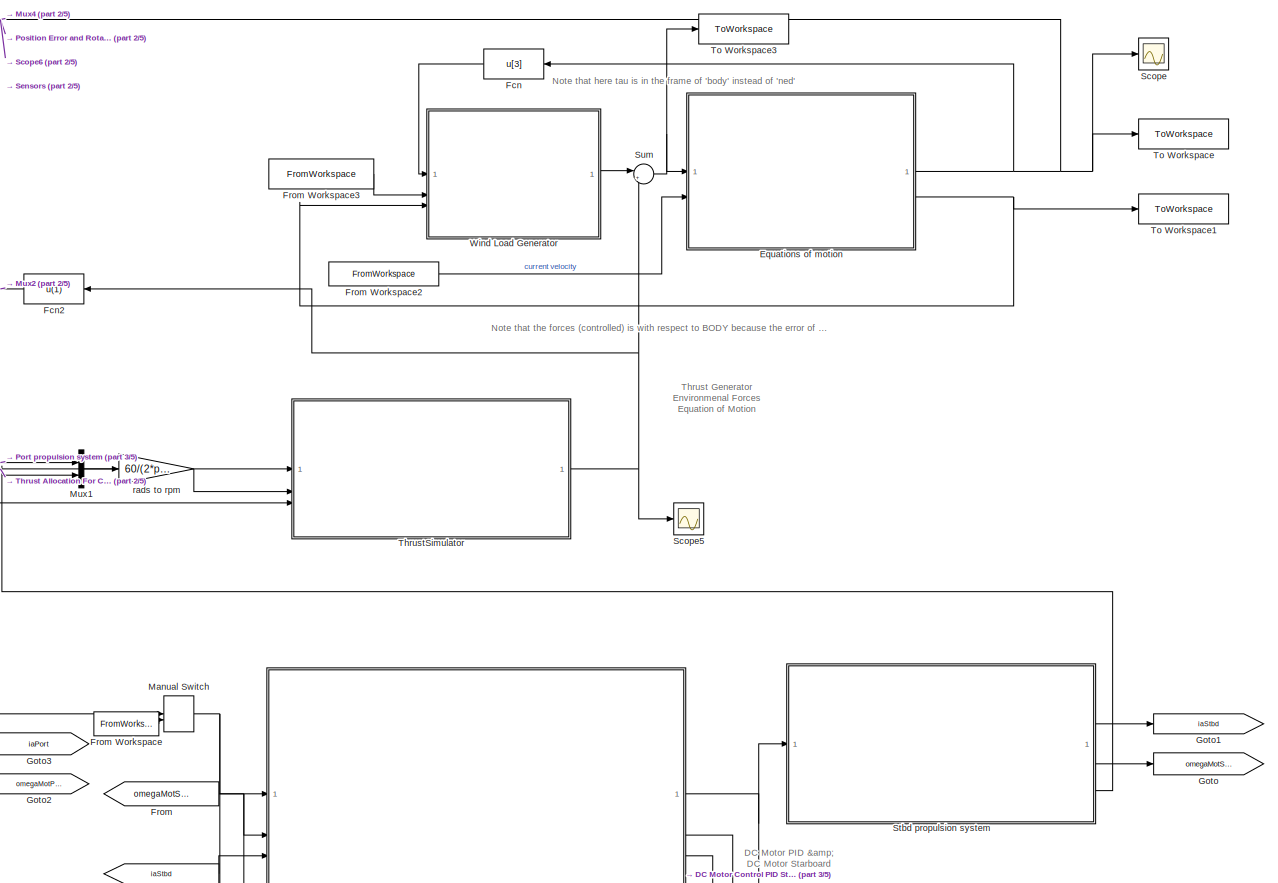
[diagram: root canvas - part 1/5, top right region]
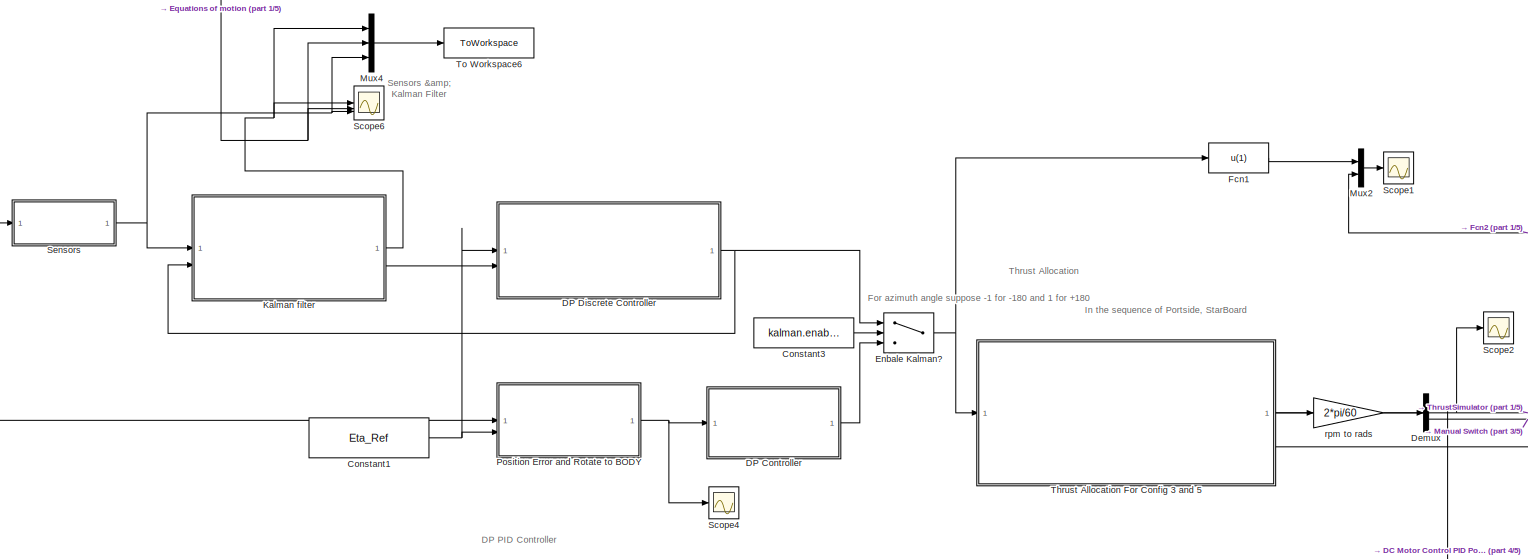
[diagram: root canvas - part 2/5, top left region]
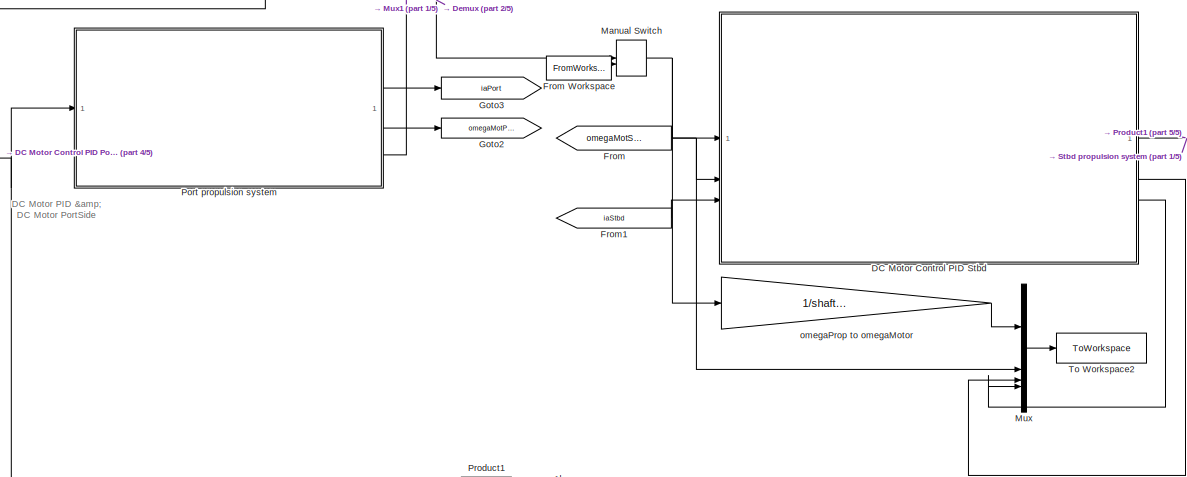
[diagram: root canvas - part 3/5, central region]
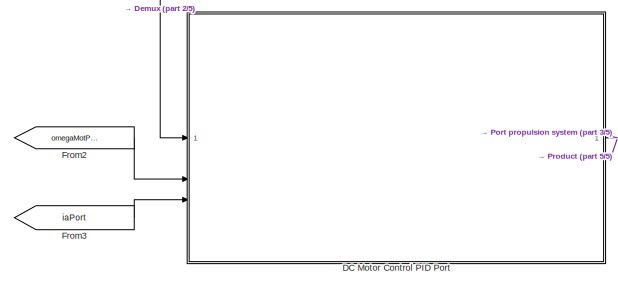
[diagram: root canvas - part 4/5, middle left region]
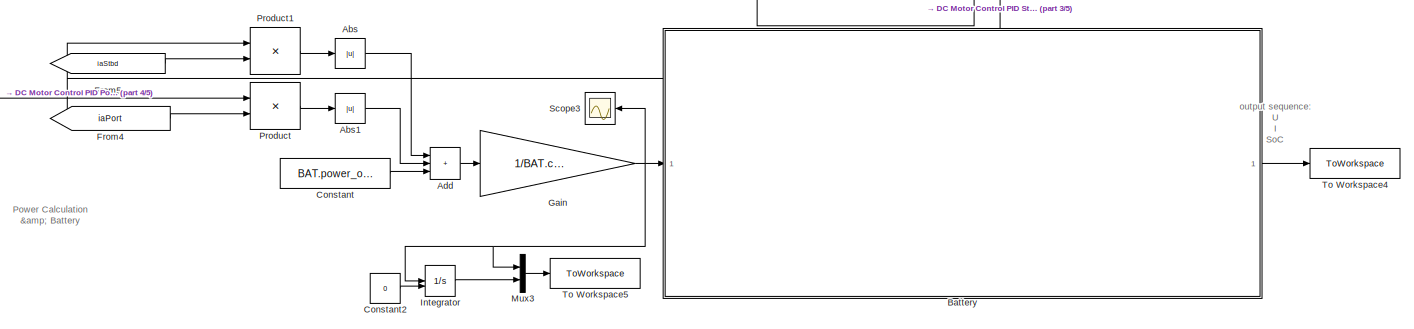
[diagram: root canvas - part 5/5, bottom right region]
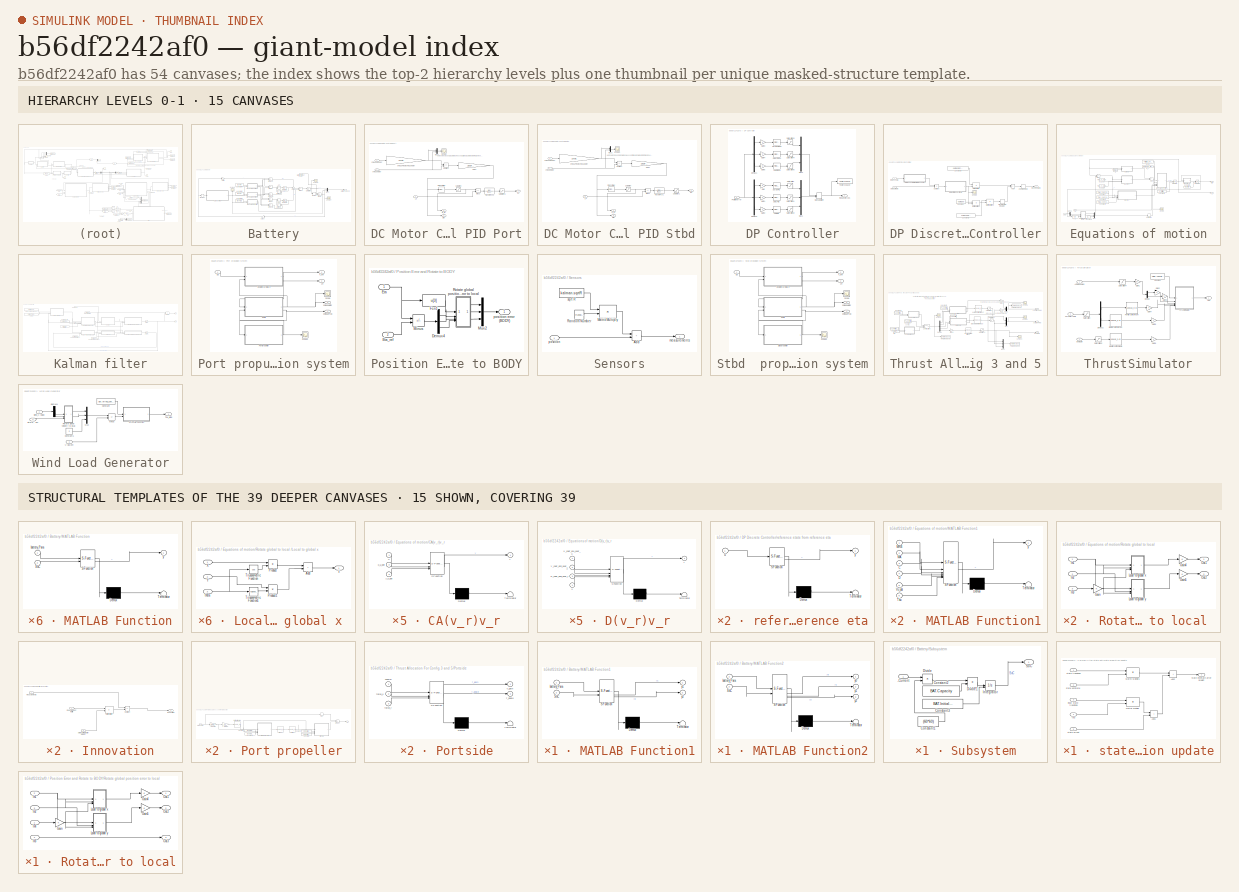
[diagram: thumbnail index - top-2 hierarchy levels (15 canvases) + 15 structural-template representatives of the remaining 39 canvases]
MODEL slx_b56df2242af0
KIND model
CONFIG AbsTol = auto
CONFIG EnableMultiTasking = off
CONFIG FixedStep = 0.01
CONFIG MaxStep = auto
CONFIG MinStep = auto
CONFIG RelTol = 1e-3
CONFIG SampleTimeConstraint = Unconstrained
CONFIG SolverName = VariableStepAuto
CONFIG StartTime = 0.0
CONFIG StopTime = 200
BLOCK [Abs] Abs
  SaturateOnIntegerOverflow = off
BLOCK [Abs] Abs1
  SaturateOnIntegerOverflow = off
BLOCK [Sum] Add
  IconShape = rectangular
  Inputs = +++
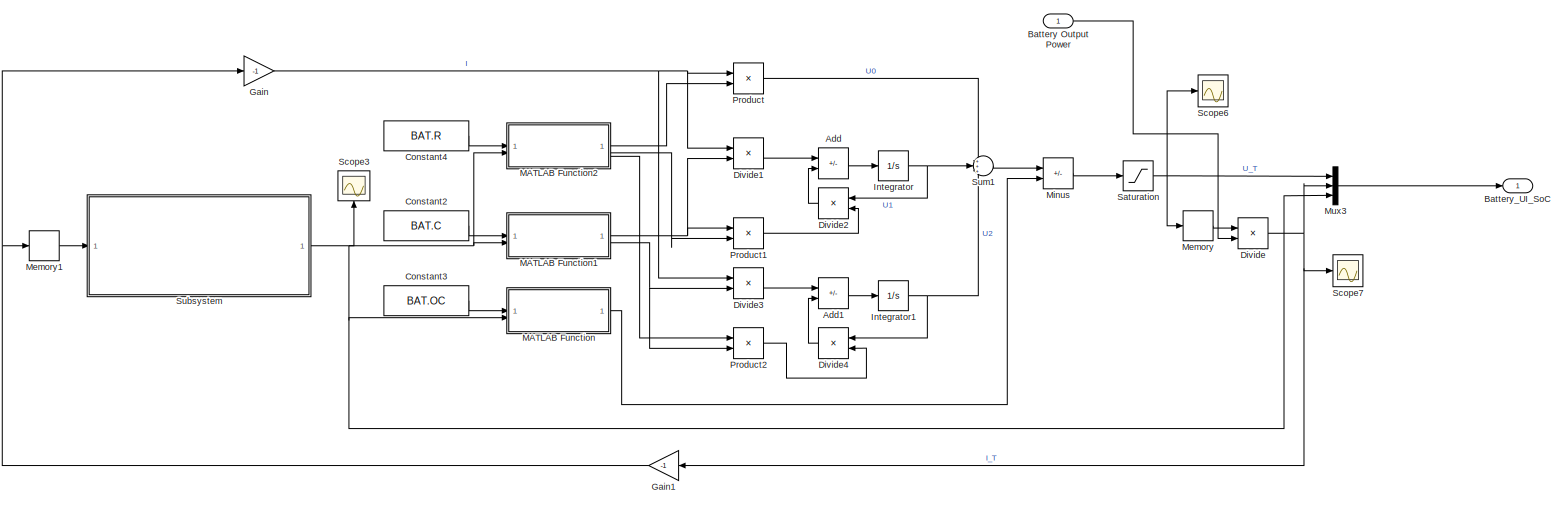
[diagram: Battery - part 1/1, most of the canvas]
BLOCK [SubSystem] Battery
BLOCK [Sum] Battery/Add
  IconShape = rectangular
  Inputs = +-
BLOCK [Sum] Battery/Add1
  IconShape = rectangular
  Inputs = +-
BLOCK [Inport] Battery/Battery Output Power
BLOCK [Outport] Battery/Battery_UI_SoC
BLOCK [Constant] Battery/Constant2
  Value = BAT.C
BLOCK [Constant] Battery/Constant3
  Value = BAT.OC
BLOCK [Constant] Battery/Constant4
  Value = BAT.R
BLOCK [Product] Battery/Divide
  Inputs = /*
BLOCK [Product] Battery/Divide1
  Inputs = */
BLOCK [Product] Battery/Divide2
  Inputs = */
BLOCK [Product] Battery/Divide3
  Inputs = */
BLOCK [Product] Battery/Divide4
  Inputs = */
BLOCK [Gain] Battery/Gain
  Gain = -1
BLOCK [Gain] Battery/Gain1
  Gain = -1
BLOCK [Integrator] Battery/Integrator
BLOCK [Integrator] Battery/Integrator1
BLOCK [SubSystem] Battery/MATLAB Function
  ErrorFcn = Stateflow.Translate.translate
  PermitHierarchicalResolution = ExplicitOnly
  SFBlockType = MATLAB Function
  TreatAsAtomicUnit = on
BLOCK [Demux] Battery/MATLAB Function/ Demux 
  Outputs = 1
BLOCK [S-Function] Battery/MATLAB Function/ SFunction 
  EnableBusSupport = on
  FunctionName = sf_sfun
  PortCounts = [2 2]
  SFcnIsStateOwnerBlock = off
  SFunctionDeploymentMode = off
  Tag = Stateflow S-Function 15
BLOCK [Terminator] Battery/MATLAB Function/ Terminator 
BLOCK [Inport] Battery/MATLAB Function/SoC
  Port = 2
BLOCK [Inport] Battery/MATLAB Function/battery_Para
BLOCK [Outport] Battery/MATLAB Function/y
BLOCK [SubSystem] Battery/MATLAB Function1
  ErrorFcn = Stateflow.Translate.translate
  PermitHierarchicalResolution = ExplicitOnly
  SFBlockType = MATLAB Function
  TreatAsAtomicUnit = on
BLOCK [Demux] Battery/MATLAB Function1/ Demux 
  Outputs = 1
BLOCK [S-Function] Battery/MATLAB Function1/ SFunction 
  EnableBusSupport = on
  FunctionName = sf_sfun
  PortCounts = [2 3]
  SFcnIsStateOwnerBlock = off
  SFunctionDeploymentMode = off
  Tag = Stateflow S-Function 16
BLOCK [Terminator] Battery/MATLAB Function1/ Terminator 
BLOCK [Inport] Battery/MATLAB Function1/SoC
  Port = 2
BLOCK [Inport] Battery/MATLAB Function1/battery_Para
BLOCK [Outport] Battery/MATLAB Function1/y1
BLOCK [Outport] Battery/MATLAB Function1/y2
  Port = 2
BLOCK [SubSystem] Battery/MATLAB Function2
  ErrorFcn = Stateflow.Translate.translate
  PermitHierarchicalResolution = ExplicitOnly
  SFBlockType = MATLAB Function
  TreatAsAtomicUnit = on
BLOCK [Demux] Battery/MATLAB Function2/ Demux 
  Outputs = 1
BLOCK [S-Function] Battery/MATLAB Function2/ SFunction 
  EnableBusSupport = on
  FunctionName = sf_sfun
  PortCounts = [2 4]
  SFcnIsStateOwnerBlock = off
  SFunctionDeploymentMode = off
  Tag = Stateflow S-Function 17
BLOCK [Terminator] Battery/MATLAB Function2/ Terminator 
BLOCK [Inport] Battery/MATLAB Function2/SoC
  Port = 2
BLOCK [Inport] Battery/MATLAB Function2/battery_Para
BLOCK [Outport] Battery/MATLAB Function2/y0
BLOCK [Outport] Battery/MATLAB Function2/y1
  Port = 2
BLOCK [Outport] Battery/MATLAB Function2/y2
  Port = 3
BLOCK [Memory] Battery/Memory
  Commented = through
  InitialCondition = BAT.Max_Voltage
BLOCK [Memory] Battery/Memory1
  Commented = through
  InitialCondition = BAT.Max_Voltage
BLOCK [Sum] Battery/Minus
  IconShape = rectangular
  Inputs = -+
BLOCK [Mux] Battery/Mux3
  DisplayOption = bar
  Inputs = 3
BLOCK [Product] Battery/Product
BLOCK [Product] Battery/Product1
BLOCK [Product] Battery/Product2
BLOCK [Saturate] Battery/Saturation
  LowerLimit = BAT.Min_Voltage
  UpperLimit = BAT.Max_Voltage
BLOCK [Scope] Battery/Scope3
  Floating = off
  NameLocation = right
  NumInputPorts = 1
  ScopeSpecificationString = Simulink.scopes.TimeScopeBlockCfg('CurrentConfiguration', extmgr.ConfigurationSet(extmgr.Configuration('Core','General UI',true),extmgr.Configuration('Core','Source UI',true),extmgr.Configuration('Sources','WiredSimulink',true,'DataLoggingVariableName','ScopeData1'),extmgr.Configuration('Visuals','Time Domain',true,'SerializedDisplays',{struct('MinYLimReal','-0.37953','MaxYLimReal','1.15328','YLab...<+1457ch>
BLOCK [Scope] Battery/Scope6
  Floating = off
  NumInputPorts = 1
  ScopeSpecificationString = Simulink.scopes.TimeScopeBlockCfg('CurrentConfiguration', extmgr.ConfigurationSet(extmgr.Configuration('Core','General UI',true),extmgr.Configuration('Core','Source UI',true),extmgr.Configuration('Sources','WiredSimulink',true,'DataLoggingVariableName','ScopeData2'),extmgr.Configuration('Visuals','Time Domain',true,'SerializedDisplays',{struct('MinYLimReal','13.1413','MaxYLimReal','13.15565','YLab...<+1453ch>
BLOCK [Scope] Battery/Scope7
  Floating = off
  NumInputPorts = 1
  ScopeSpecificationString = Simulink.scopes.TimeScopeBlockCfg('CurrentConfiguration', extmgr.ConfigurationSet(extmgr.Configuration('Core','General UI',true),extmgr.Configuration('Core','Source UI',true),extmgr.Configuration('Sources','WiredSimulink',true,'DataLoggingVariableName','ScopeData3'),extmgr.Configuration('Visuals','Time Domain',true,'SerializedDisplays',{struct('MinYLimReal','-2.26215','MaxYLimReal','24.36049','YLa...<+1455ch>
BLOCK [SubSystem] Battery/Subsystem
BLOCK [Inport] Battery/Subsystem/-Current
BLOCK [Constant] Battery/Subsystem/Constant1
  Value = (60*60)
BLOCK [Constant] Battery/Subsystem/Constant2
  Value = BAT.Capacity
BLOCK [Constant] Battery/Subsystem/Constant3
  Value = BAT.Initial_SOC
BLOCK [Product] Battery/Subsystem/Divide
  Inputs = */
BLOCK [Product] Battery/Subsystem/Divide1
  Inputs = */
BLOCK [Integrator] Battery/Subsystem/Integrator
  InitialConditionSource = external
BLOCK [Outport] Battery/Subsystem/SoC
BLOCK [Sum] Battery/Sum1
  Inputs = +++
BLOCK [Constant] Constant
  Value = BAT.power_others
BLOCK [Constant] Constant1
  Value = Eta_Ref
BLOCK [Constant] Constant2
  Value = 0
BLOCK [Constant] Constant3
  Value = kalman.enable_flag
BLOCK [SubSystem] DC Motor Control PID Port
BLOCK [Outport] DC Motor Control PID Port/Ea
BLOCK [Outport] DC Motor Control PID Port/Error
  Port = 3
BLOCK [Gain] DC Motor Control PID Port/Gain1
  Gain = 1/DC.wrated
BLOCK [Sum] DC Motor Control PID Port/Minus
  IconShape = rectangular
  Inputs = +-
BLOCK [Mux] DC Motor Control PID Port/Mux1
  DisplayOption = bar
  Inputs = 2
BLOCK [Reference] DC Motor Control PID Port/PID Controller  REF=slpidlib/PID Controller
  SourceBlock = slpidlib/PID Controller
  SourceType = PID 1dof
BLOCK [Saturate] DC Motor Control PID Port/Saturation
  LowerLimit = -DC.irated
  UpperLimit = DC.irated
BLOCK [Saturate] DC Motor Control PID Port/Saturation1
  LowerLimit = -DC.vrated
  UpperLimit = DC.vrated
BLOCK [Scope] DC Motor Control PID Port/Scope
  Floating = off
  NumInputPorts = 1
  ScopeSpecificationString = Simulink.scopes.TimeScopeBlockCfg('CurrentConfiguration', extmgr.ConfigurationSet(extmgr.Configuration('Core','General UI',true),extmgr.Configuration('Core','Source UI',true),extmgr.Configuration('Sources','WiredSimulink',true,'DataLoggingVariableName','ScopeData2'),extmgr.Configuration('Visuals','Time Domain',true,'SerializedDisplays',{struct('MinYLimReal','-26.46274','MaxYLimReal','238.16467','Y...<+1527ch>
BLOCK [Sum] DC Motor Control PID Port/Subtract
  IconShape = rectangular
  Inputs = +-
BLOCK [TransferFcn] DC Motor Control PID Port/Transfer Fcn1
  Denominator = [0.1 1]
  Numerator = [16]
BLOCK [Inport] DC Motor Control PID Port/i_a
  Port = 3
BLOCK [Outport] DC Motor Control PID Port/ia_ref
  Port = 2
BLOCK [Inport] DC Motor Control PID Port/omegaMotor
  Port = 2
BLOCK [Gain] DC Motor Control PID Port/omegaProp to omegaMotor
  Gain = 1/shaft.gearRatio1to2/shaft.gearRatio2to3
BLOCK [Inport] DC Motor Control PID Port/omegaPropRef
BLOCK [SubSystem] DC Motor Control PID Stbd
BLOCK [Outport] DC Motor Control PID Stbd/Ea
BLOCK [Outport] DC Motor Control PID Stbd/Error
  Port = 3
BLOCK [Gain] DC Motor Control PID Stbd/Gain1
  Gain = 1/DC.wrated
BLOCK [Sum] DC Motor Control PID Stbd/Minus
  IconShape = rectangular
  Inputs = +-
BLOCK [Mux] DC Motor Control PID Stbd/Mux2
  DisplayOption = bar
  Inputs = 2
BLOCK [Reference] DC Motor Control PID Stbd/PID Controller  REF=slpidlib/PID Controller
  LibrarySourceBlock = simulink/Continuous/PID Controller
  SourceBlock = slpidlib/PID Controller
  SourceType = PID 1dof
BLOCK [Saturate] DC Motor Control PID Stbd/Saturation
  LowerLimit = -DC.irated
  UpperLimit = DC.irated
BLOCK [Saturate] DC Motor Control PID Stbd/Saturation1
  LowerLimit = -DC.vrated
  UpperLimit = DC.vrated
BLOCK [Scope] DC Motor Control PID Stbd/Scope1
  Floating = off
  NumInputPorts = 1
  ScopeSpecificationString = Simulink.scopes.TimeScopeBlockCfg('CurrentConfiguration', extmgr.ConfigurationSet(extmgr.Configuration('Core','General UI',true),extmgr.Configuration('Core','Source UI',true),extmgr.Configuration('Sources','WiredSimulink',true,'DataLoggingVariableName','ScopeData3'),extmgr.Configuration('Visuals','Time Domain',true,'SerializedDisplays',{struct('MinYLimReal','-30.00401','MaxYLimReal','270.03606','Y...<+1527ch>
BLOCK [Sum] DC Motor Control PID Stbd/Subtract
  IconShape = rectangular
  Inputs = +-
BLOCK [TransferFcn] DC Motor Control PID Stbd/Transfer Fcn1
  Denominator = [0.1 1]
  Numerator = [16]
BLOCK [Inport] DC Motor Control PID Stbd/i_a
  Port = 3
BLOCK [Outport] DC Motor Control PID Stbd/ia_ref
  Port = 2
BLOCK [Inport] DC Motor Control PID Stbd/omegaMotor
  Port = 2
BLOCK [Gain] DC Motor Control PID Stbd/omegaProp to omegaMotor
  Gain = 1/shaft.gearRatio1to2/shaft.gearRatio2to3
BLOCK [Inport] DC Motor Control PID Stbd/omegaPropRef
BLOCK [SubSystem] DP Controller
BLOCK [Demux] DP Controller/Demux1
  Commented = on
  Outputs = 3
BLOCK [Demux] DP Controller/Demux2
  Outputs = 3
BLOCK [Gain] DP Controller/Gain
BLOCK [Gain] DP Controller/Gain1
BLOCK [Gain] DP Controller/Gain2
BLOCK [Gain] DP Controller/Gain3
  Commented = on
BLOCK [Gain] DP Controller/Gain4
  Commented = on
BLOCK [Gain] DP Controller/Gain5
  Commented = on
BLOCK [ManualSwitch] DP Controller/Manual Switch
  CurrentSetting = 0
BLOCK [Mux] DP Controller/Mux1
  DisplayOption = bar
  Inputs = 3
BLOCK [Mux] DP Controller/Mux2
  Commented = on
  DisplayOption = bar
  Inputs = 3
BLOCK [Inport] DP Controller/Position error
BLOCK [Outport] DP Controller/Require forces
BLOCK [Saturate] DP Controller/Saturation
  LowerLimit = -2
  UpperLimit = 2
BLOCK [Saturate] DP Controller/Saturation1
  LowerLimit = -2
  UpperLimit = 2
BLOCK [Saturate] DP Controller/Saturation2
  LowerLimit = -1
  UpperLimit = 1
BLOCK [Saturate] DP Controller/Saturation3
  Commented = on
  LowerLimit = -2
  UpperLimit = 2
BLOCK [Saturate] DP Controller/Saturation4
  Commented = on
  LowerLimit = -2
  UpperLimit = 2
BLOCK [Saturate] DP Controller/Saturation5
  Commented = on
  LowerLimit = -1
  UpperLimit = 1
BLOCK [Reference] DP Controller/Surge PID  REF=slpidlib/PID Controller
  LibrarySourceBlock = simulink/Continuous/PID Controller
  SourceBlock = slpidlib/PID Controller
  SourceType = PID 1dof
BLOCK [Reference] DP Controller/Surge PID ZN  REF=slpidlib/PID Controller
  Commented = on
  LibrarySourceBlock = simulink/Continuous/PID Controller
  SourceBlock = slpidlib/PID Controller
  SourceType = PID 1dof
BLOCK [Reference] DP Controller/Sway PID  REF=slpidlib/PID Controller
  LibrarySourceBlock = simulink/Continuous/PID Controller
  SourceBlock = slpidlib/PID Controller
  SourceType = PID 1dof
BLOCK [Reference] DP Controller/Sway PID ZN  REF=slpidlib/PID Controller
  Commented = on
  LibrarySourceBlock = simulink/Continuous/PID Controller
  SourceBlock = slpidlib/PID Controller
  SourceType = PID 1dof
BLOCK [ToWorkspace] DP Controller/To Workspace
  FixptAsFi = on
  MaxDataPoints = inf
  SampleTime = -1
  VariableName = force_required
BLOCK [Reference] DP Controller/Yaw PID  REF=slpidlib/PID Controller
  LibrarySourceBlock = simulink/Continuous/PID Controller
  SourceBlock = slpidlib/PID Controller
  SourceType = PID 1dof
BLOCK [Reference] DP Controller/Yaw PID ZN  REF=slpidlib/PID Controller
  Commented = on
  LibrarySourceBlock = simulink/Continuous/PID Controller
  SourceBlock = slpidlib/PID Controller
  SourceType = PID 1dof
BLOCK [SubSystem] DP Discrete Controller
BLOCK [Sum] DP Discrete Controller/Add
  IconShape = rectangular
BLOCK [Constant] DP Discrete Controller/Constant
  Value = kalman.H
BLOCK [Constant] DP Discrete Controller/Constant1
  Value = kalman.KDiscreteIntegrators
BLOCK [Constant] DP Discrete Controller/Constant3
  Value = kalman.discreteControllerGains
BLOCK [DiscreteIntegrator] DP Discrete Controller/Discrete-Time Integrator
  ICPrevOutput = DiscIntNeverNeededParam
  ICPrevScaledInput = DiscIntNeverNeededParam
  InitialConditionSetting = Auto
  SampleTime = kalman.TSampling
BLOCK [Product] DP Discrete Controller/Matrix Multiply
  Multiplication = Matrix(*)
BLOCK [Product] DP Discrete Controller/Matrix Multiply1
  Multiplication = Matrix(*)
BLOCK [Product] DP Discrete Controller/Matrix Multiply2
  Multiplication = Matrix(*)
BLOCK [Scope] DP Discrete Controller/Scope
  Floating = off
  NumInputPorts = 1
  ScopeSpecificationString = Simulink.scopes.TimeScopeBlockCfg('CurrentConfiguration', extmgr.ConfigurationSet(extmgr.Configuration('Core','General UI',true),extmgr.Configuration('Core','Source UI',true),extmgr.Configuration('Sources','WiredSimulink',true,'DataLoggingVariableName','ScopeData3'),extmgr.Configuration('Visuals','Time Domain',true,'SerializedDisplays',{struct('MinYLimReal','-0.12653','MaxYLimReal','0.08455','YLab...<+1682ch>
BLOCK [Sum] DP Discrete Controller/Subtract
  IconShape = rectangular
  Inputs = +-
BLOCK [ZeroOrderHold] DP Discrete Controller/Zero-Order Hold
  SampleTime = kalman.TSampling
BLOCK [Outport] DP Discrete Controller/forceRequired
  SampleTime = 0
BLOCK [SubSystem] DP Discrete Controller/reference state from reference eta
  ErrorFcn = Stateflow.Translate.translate
  PermitHierarchicalResolution = ExplicitOnly
  SFBlockType = MATLAB Function
  TreatAsAtomicUnit = on
BLOCK [Demux] DP Discrete Controller/reference state from reference eta/ Demux 
  Outputs = 1
BLOCK [S-Function] DP Discrete Controller/reference state from reference eta/ SFunction 
  EnableBusSupport = on
  FunctionName = sf_sfun
  PortCounts = [1 2]
  SFcnIsStateOwnerBlock = off
  SFunctionDeploymentMode = off
  Tag = Stateflow S-Function 23
BLOCK [Terminator] DP Discrete Controller/reference state from reference eta/ Terminator 
BLOCK [Inport] DP Discrete Controller/reference state from reference eta/u
BLOCK [Outport] DP Discrete Controller/reference state from reference eta/y
BLOCK [Inport] DP Discrete Controller/referenceEta
  SampleTime = kalman.TSampling
BLOCK [SubSystem] DP Discrete Controller/rotate error to body frame
  ErrorFcn = Stateflow.Translate.translate
  PermitHierarchicalResolution = ExplicitOnly
  SFBlockType = MATLAB Function
  TreatAsAtomicUnit = on
BLOCK [Demux] DP Discrete Controller/rotate error to body frame/ Demux 
  Outputs = 1
BLOCK [S-Function] DP Discrete Controller/rotate error to body frame/ SFunction 
  EnableBusSupport = on
  FunctionName = sf_sfun
  PortCounts = [1 2]
  SFcnIsStateOwnerBlock = off
  SFunctionDeploymentMode = off
  Tag = Stateflow S-Function 24
BLOCK [Terminator] DP Discrete Controller/rotate error to body frame/ Terminator 
BLOCK [Outport] DP Discrete Controller/rotate error to body frame/errorStateBody
BLOCK [Inport] DP Discrete Controller/rotate error to body frame/errorStateNED
BLOCK [Inport] DP Discrete Controller/stateEstimate
  Port = 2
  SampleTime = kalman.TSampling
BLOCK [Demux] Demux
  Outputs = 2
BLOCK [Switch] Enbale Kalman?
  Criteria = u2 > Threshold
  InputSameDT = off
  SaturateOnIntegerOverflow = off
  Threshold = 0.5
BLOCK [SubSystem] Equations of motion
BLOCK [Sum] Equations of motion/Add
  IconShape = rectangular
BLOCK [SubSystem] Equations of motion/CA(v_r)v_r
  ErrorFcn = Stateflow.Translate.translate
  PermitHierarchicalResolution = ExplicitOnly
  SFBlockType = MATLAB Function
  TreatAsAtomicUnit = on
BLOCK [Demux] Equations of motion/CA(v_r)v_r/ Demux 
  Outputs = 1
BLOCK [S-Function] Equations of motion/CA(v_r)v_r/ SFunction 
  EnableBusSupport = on
  FunctionName = sf_sfun
  PortCounts = [3 2]
  SFcnIsStateOwnerBlock = off
  SFunctionDeploymentMode = off
  Tag = Stateflow S-Function 1
BLOCK [Terminator] Equations of motion/CA(v_r)v_r/ Terminator 
BLOCK [Inport] Equations of motion/CA(v_r)v_r/V
BLOCK [Inport] Equations of motion/CA(v_r)v_r/x_u_dot
  Port = 2
BLOCK [Outport] Equations of motion/CA(v_r)v_r/y
BLOCK [Inport] Equations of motion/CA(v_r)v_r/y_v_dot
  Port = 3
BLOCK [SubSystem] Equations of motion/CRB(v)v
  ErrorFcn = Stateflow.Translate.translate
  PermitHierarchicalResolution = ExplicitOnly
  SFBlockType = MATLAB Function
  TreatAsAtomicUnit = on
BLOCK [Demux] Equations of motion/CRB(v)v/ Demux 
  Outputs = 1
BLOCK [S-Function] Equations of motion/CRB(v)v/ SFunction 
  EnableBusSupport = on
  FunctionName = sf_sfun
  PortCounts = [2 2]
  SFcnIsStateOwnerBlock = off
  SFunctionDeploymentMode = off
  Tag = Stateflow S-Function 2
BLOCK [Terminator] Equations of motion/CRB(v)v/ Terminator 
BLOCK [Inport] Equations of motion/CRB(v)v/V
BLOCK [Inport] Equations of motion/CRB(v)v/m
  Port = 2
BLOCK [Outport] Equations of motion/CRB(v)v/y
BLOCK [Constant] Equations of motion/Constant
  Value = TN.X_coef_d11_over_u
BLOCK [Constant] Equations of motion/Constant1
  Value = TN.Y_coef_d22_over_v
BLOCK [Constant] Equations of motion/Constant2
  Value = TN.N_coef_d33_over_r
BLOCK [Constant] Equations of motion/Constant3
  Value = 0
BLOCK [Constant] Equations of motion/Constant4
  Value = V_initial
BLOCK [Constant] Equations of motion/Constant5
  Value = Eta_initial
BLOCK [SubSystem] Equations of motion/D(v_r)v_r
  ErrorFcn = Stateflow.Translate.translate
  PermitHierarchicalResolution = ExplicitOnly
  SFBlockType = MATLAB Function
  TreatAsAtomicUnit = on
BLOCK [Demux] Equations of motion/D(v_r)v_r/ Demux 
  Outputs = 1
BLOCK [S-Function] Equations of motion/D(v_r)v_r/ SFunction 
  EnableBusSupport = on
  FunctionName = sf_sfun
  PortCounts = [4 2]
  SFcnIsStateOwnerBlock = off
  SFunctionDeploymentMode = off
  Tag = Stateflow S-Function 4
BLOCK [Terminator] Equations of motion/D(v_r)v_r/ Terminator 
BLOCK [Inport] Equations of motion/D(v_r)v_r/N_coef_d33_over_r
  Port = 3
BLOCK [Inport] Equations of motion/D(v_r)v_r/V
  Port = 4
BLOCK [Inport] Equations of motion/D(v_r)v_r/X_coef_d11_over_u
BLOCK [Inport] Equations of motion/D(v_r)v_r/Y_coef_d22_over_v
  Port = 2
BLOCK [Outport] Equations of motion/D(v_r)v_r/y
BLOCK [Demux] Equations of motion/Demux
  Outputs = 2
BLOCK [Derivative] Equations of motion/Derivative
BLOCK [Outport] Equations of motion/Eta
BLOCK [SubSystem] Equations of motion/Eta-dot(by R)
  ErrorFcn = Stateflow.Translate.translate
  PermitHierarchicalResolution = ExplicitOnly
  SFBlockType = MATLAB Function
  TreatAsAtomicUnit = on
BLOCK [Demux] Equations of motion/Eta-dot(by R)/ Demux 
  Outputs = 1
BLOCK [S-Function] Equations of motion/Eta-dot(by R)/ SFunction 
  EnableBusSupport = on
  FunctionName = sf_sfun
  PortCounts = [2 2]
  SFcnIsStateOwnerBlock = off
  SFunctionDeploymentMode = off
  Tag = Stateflow S-Function 6
BLOCK [Terminator] Equations of motion/Eta-dot(by R)/ Terminator 
BLOCK [Inport] Equations of motion/Eta-dot(by R)/Eta
BLOCK [Inport] Equations of motion/Eta-dot(by R)/V
  Port = 2
BLOCK [Outport] Equations of motion/Eta-dot(by R)/y
BLOCK [Fcn] Equations of motion/Fcn
  Expr = u[3]
BLOCK [Integrator] Equations of motion/Integrator
  InitialConditionSource = external
BLOCK [Integrator] Equations of motion/Integrator1
  InitialConditionSource = external
BLOCK [SubSystem] Equations of motion/MATLAB Function1
  ErrorFcn = Stateflow.Translate.translate
  PermitHierarchicalResolution = ExplicitOnly
  SFBlockType = MATLAB Function
  TreatAsAtomicUnit = on
BLOCK [Demux] Equations of motion/MATLAB Function1/ Demux 
  Outputs = 1
BLOCK [S-Function] Equations of motion/MATLAB Function1/ SFunction 
  EnableBusSupport = on
  FunctionName = sf_sfun
  PortCounts = [6 2]
  SFcnIsStateOwnerBlock = off
  SFunctionDeploymentMode = off
  Tag = Stateflow S-Function 3
BLOCK [Terminator] Equations of motion/MATLAB Function1/ Terminator 
BLOCK [Inport] Equations of motion/MATLAB Function1/C
  Port = 3
BLOCK [Inport] Equations of motion/MATLAB Function1/D
  Port = 4
BLOCK [Inport] Equations of motion/MATLAB Function1/MA
  Port = 2
BLOCK [Inport] Equations of motion/MATLAB Function1/MRB
BLOCK [Inport] Equations of motion/MATLAB Function1/Tau
  Port = 6
BLOCK [Inport] Equations of motion/MATLAB Function1/Vc_dot
  Port = 5
BLOCK [Outport] Equations of motion/MATLAB Function1/y
BLOCK [Constant] Equations of motion/M_A
  Value = TN.added_Mass
BLOCK [Constant] Equations of motion/M_RB
  Value = TN.rigid_body_Mass
BLOCK [Sum] Equations of motion/Minus
  IconShape = rectangular
  Inputs = +-
BLOCK [Mux] Equations of motion/Mux
  DisplayOption = bar
  Inputs = 3
BLOCK [SubSystem] Equations of motion/Rotate global to local 
BLOCK [Gain] Equations of motion/Rotate global to local /Gain
BLOCK [Gain] Equations of motion/Rotate global to local /Gain4
BLOCK [Gain] Equations of motion/Rotate global to local /Gain5
BLOCK [Inport] Equations of motion/Rotate global to local /In1
BLOCK [Inport] Equations of motion/Rotate global to local /In2
  Port = 2
BLOCK [Inport] Equations of motion/Rotate global to local /In3
  Port = 3
BLOCK [SubSystem] Equations of motion/Rotate global to local /Local to global x 
BLOCK [Sum] Equations of motion/Rotate global to local /Local to global x /Add
  IconShape = rectangular
BLOCK [Product] Equations of motion/Rotate global to local /Local to global x /Product
BLOCK [Product] Equations of motion/Rotate global to local /Local to global x /Product1
BLOCK [Trigonometry] Equations of motion/Rotate global to local /Local to global x /Trigonometric Function
  Operator = cos
BLOCK [Trigonometry] Equations of motion/Rotate global to local /Local to global x /Trigonometric Function1
BLOCK [Inport] Equations of motion/Rotate global to local /Local to global x /X
BLOCK [Inport] Equations of motion/Rotate global to local /Local to global x /Y
  Port = 2
BLOCK [Inport] Equations of motion/Rotate global to local /Local to global x /theta
  Port = 3
BLOCK [Outport] Equations of motion/Rotate global to local /Local to global x /x
  VectorParamsAs1DForOutWhenUnconnected = off
BLOCK [SubSystem] Equations of motion/Rotate global to local /Local to global y
BLOCK [Sum] Equations of motion/Rotate global to local /Local to global y/Add
  IconShape = rectangular
  Inputs = -+
BLOCK [Product] Equations of motion/Rotate global to local /Local to global y/Product
BLOCK [Product] Equations of motion/Rotate global to local /Local to global y/Product1
BLOCK [Trigonometry] Equations of motion/Rotate global to local /Local to global y/Trigonometric Function
BLOCK [Trigonometry] Equations of motion/Rotate global to local /Local to global y/Trigonometric Function1
  Operator = cos
BLOCK [Inport] Equations of motion/Rotate global to local /Local to global y/X
BLOCK [Inport] Equations of motion/Rotate global to local /Local to global y/Y
  Port = 2
BLOCK [Inport] Equations of motion/Rotate global to local /Local to global y/theta
  Port = 3
BLOCK [Outport] Equations of motion/Rotate global to local /Local to global y/y
  VectorParamsAs1DForOutWhenUnconnected = off
BLOCK [Outport] Equations of motion/Rotate global to local /Out1
  VectorParamsAs1DForOutWhenUnconnected = off
BLOCK [Outport] Equations of motion/Rotate global to local /Out2
  Port = 2
  VectorParamsAs1DForOutWhenUnconnected = off
BLOCK [Scope] Equations of motion/Scope
  Floating = off
  NumInputPorts = 1
  ScopeSpecificationString = Simulink.scopes.TimeScopeBlockCfg('CurrentConfiguration', extmgr.ConfigurationSet(extmgr.Configuration('Core','General UI',true),extmgr.Configuration('Core','Source UI',true),extmgr.Configuration('Sources','WiredSimulink',true,'DataLoggingVariableName','ScopeData1'),extmgr.Configuration('Visuals','Time Domain',true,'SerializedDisplays',{struct('MinYLimReal','-0.00042','MaxYLimReal','0.0002','YLabe...<+1488ch>
BLOCK [Inport] Equations of motion/Tau
BLOCK [Outport] Equations of motion/V
  Port = 2
BLOCK [Constant] Equations of motion/m
  Value = TN.mass
BLOCK [Inport] Equations of motion/v_c
  Port = 2
BLOCK [Constant] Equations of motion/x_u_dot 
  Value = TN.x_u_dot
BLOCK [Constant] Equations of motion/y_v_dot
  Value = TN.y_v_dot
BLOCK [Fcn] Fcn
  Expr = u[3]
BLOCK [Fcn] Fcn1
  Expr = u(1)
BLOCK [Fcn] Fcn2
  Expr = u(1)
BLOCK [From] From
  GotoTag = omegaMotStbd
BLOCK [FromWorkspace] From Workspace
  VariableName = DCon.w_ref
BLOCK [FromWorkspace] From Workspace2
  VariableName = EN.current_v_Sample
BLOCK [FromWorkspace] From Workspace3
  VariableName = EN.wind_v_Sample
BLOCK [From] From1
  GotoTag = iaStbd
BLOCK [From] From2
  GotoTag = omegaMotPort
BLOCK [From] From3
  GotoTag = iaPort
BLOCK [From] From4
  GotoTag = iaPort
BLOCK [From] From5
  GotoTag = iaStbd
BLOCK [Gain] Gain
  Gain = 1/BAT.converter_efficiency
BLOCK [Goto] Goto
  GotoTag = omegaMotStbd
BLOCK [Goto] Goto1
  GotoTag = iaStbd
BLOCK [Goto] Goto2
  GotoTag = omegaMotPort
BLOCK [Goto] Goto3
  GotoTag = iaPort
BLOCK [Integrator] Integrator
  InitialConditionSource = external
BLOCK [SubSystem] Kalman filter
BLOCK [Outport] Kalman filter/Eta
  SampleTime = kalman.TSampling
BLOCK [SubSystem] Kalman filter/Innovation
BLOCK [Product] Kalman filter/Innovation/Matrix Multiply
  Multiplication = Matrix(*)
BLOCK [Sum] Kalman filter/Innovation/Subtract
  IconShape = rectangular
  Inputs = +-
BLOCK [Outport] Kalman filter/Innovation/innovation
BLOCK [Inport] Kalman filter/Innovation/measurement matrix
  Port = 2
BLOCK [Inport] Kalman filter/Innovation/measurements
BLOCK [Inport] Kalman filter/Innovation/state estimate after predict
  Port = 3
BLOCK [SubSystem] Kalman filter/Kalman gain
  ErrorFcn = Stateflow.Translate.translate
  PermitHierarchicalResolution = ExplicitOnly
  SFBlockType = MATLAB Function
  TreatAsAtomicUnit = on
BLOCK [Demux] Kalman filter/Kalman gain/ Demux 
  Outputs = 1
BLOCK [S-Function] Kalman filter/Kalman gain/ SFunction 
  EnableBusSupport = on
  FunctionName = sf_sfun
  PortCounts = [3 2]
  SFcnIsStateOwnerBlock = off
  SFunctionDeploymentMode = off
  Tag = Stateflow S-Function 20
BLOCK [Terminator] Kalman filter/Kalman gain/ Terminator 
BLOCK [Inport] Kalman filter/Kalman gain/H
  Port = 2
BLOCK [Outport] Kalman filter/Kalman gain/K
BLOCK [Inport] Kalman filter/Kalman gain/PAfterPredict
BLOCK [Inport] Kalman filter/Kalman gain/R
  Port = 3
BLOCK [Product] Kalman filter/Matrix Multiply
  Multiplication = Matrix(*)
BLOCK [Constant] Kalman filter/TSampling
  Value = kalman.TSampling
BLOCK [UnitDelay] Kalman filter/Unit Delay
  HasFrameUpgradeWarning = on
  InitialCondition = zeros(6,1)
  SampleTime = kalman.TSampling
BLOCK [UnitDelay] Kalman filter/Unit Delay1
  HasFrameUpgradeWarning = on
  InitialCondition = eye(6)
  SampleTime = kalman.TSampling
BLOCK [Constant] Kalman filter/continuousStateTransitionAround0
  Value = kalman.continuousStateTransitionAround0
BLOCK [SubSystem] Kalman filter/covariance estimate measurement update
  ErrorFcn = Stateflow.Translate.translate
  PermitHierarchicalResolution = ExplicitOnly
  SFBlockType = MATLAB Function
  TreatAsAtomicUnit = on
BLOCK [Demux] Kalman filter/covariance estimate measurement update/ Demux 
  Outputs = 1
BLOCK [S-Function] Kalman filter/covariance estimate measurement update/ SFunction 
  EnableBusSupport = on
  FunctionName = sf_sfun
  PortCounts = [3 2]
  SFcnIsStateOwnerBlock = off
  SFunctionDeploymentMode = off
  Tag = Stateflow S-Function 21
BLOCK [Terminator] Kalman filter/covariance estimate measurement update/ Terminator 
BLOCK [Inport] Kalman filter/covariance estimate measurement update/H
  Port = 2
BLOCK [Inport] Kalman filter/covariance estimate measurement update/K
BLOCK [Outport] Kalman filter/covariance estimate measurement update/PAfterMeasurements
BLOCK [Inport] Kalman filter/covariance estimate measurement update/PAfterPredict
  Port = 3
BLOCK [SubSystem] Kalman filter/covariance estimate prediction update
  ErrorFcn = Stateflow.Translate.translate
  PermitHierarchicalResolution = ExplicitOnly
  SFBlockType = MATLAB Function
  TreatAsAtomicUnit = on
BLOCK [Demux] Kalman filter/covariance estimate prediction update/ Demux 
  Outputs = 1
BLOCK [S-Function] Kalman filter/covariance estimate prediction update/ SFunction 
  EnableBusSupport = on
  FunctionName = sf_sfun
  PortCounts = [3 2]
  SFcnIsStateOwnerBlock = off
  SFunctionDeploymentMode = off
  Tag = Stateflow S-Function 19
BLOCK [Terminator] Kalman filter/covariance estimate prediction update/ Terminator 
BLOCK [Inport] Kalman filter/covariance estimate prediction update/F
BLOCK [Outport] Kalman filter/covariance estimate prediction update/PAFterPredict
BLOCK [Inport] Kalman filter/covariance estimate prediction update/PPrevious
  Port = 2
BLOCK [Inport] Kalman filter/covariance estimate prediction update/Q
  Port = 3
BLOCK [Constant] Kalman filter/inputStateTransition
  Value = kalman.inputStateTransition
BLOCK [Constant] Kalman filter/measurement matrix
  Value = kalman.H
BLOCK [Constant] Kalman filter/measurement noise covariance
  Value = kalman.R
BLOCK [Inport] Kalman filter/measurements
  SampleTime = kalman.TSampling
BLOCK [Constant] Kalman filter/process noise covariance
  Value = kalman.Q
BLOCK [Outport] Kalman filter/state
  Port = 2
  SampleTime = kalman.TSampling
BLOCK [SubSystem] Kalman filter/state estimate measurement update
BLOCK [Sum] Kalman filter/state estimate measurement update/Add1
  IconShape = rectangular
BLOCK [Inport] Kalman filter/state estimate measurement update/Kalman gain
  Port = 3
BLOCK [Product] Kalman filter/state estimate measurement update/Matrix Multiply
  Multiplication = Matrix(*)
BLOCK [Inport] Kalman filter/state estimate measurement update/innovation
BLOCK [Outport] Kalman filter/state estimate measurement update/state estimate after measurements
BLOCK [Inport] Kalman filter/state estimate measurement update/state estimate after predict
  Port = 2
BLOCK [SubSystem] Kalman filter/state estimate prediction update
BLOCK [Sum] Kalman filter/state estimate prediction update/Add1
  IconShape = rectangular
BLOCK [Sum] Kalman filter/state estimate prediction update/Add2
  IconShape = rectangular
BLOCK [Product] Kalman filter/state estimate prediction update/Matrix Multiply
  Multiplication = Matrix(*)
BLOCK [Product] Kalman filter/state estimate prediction update/Matrix Multiply1
  Multiplication = Matrix(*)
BLOCK [Inport] Kalman filter/state estimate prediction update/input state transition
  Port = 3
BLOCK [Inport] Kalman filter/state estimate prediction update/state estimate
  Port = 2
BLOCK [Outport] Kalman filter/state estimate prediction update/state estimate after predict
BLOCK [Inport] Kalman filter/state estimate prediction update/state offset
  Port = 5
BLOCK [Inport] Kalman filter/state estimate prediction update/state transition
BLOCK [Inport] Kalman filter/state estimate prediction update/tau
  Port = 4
BLOCK [Constant] Kalman filter/stateOffset
  Value = zeros(6,1)
BLOCK [SubSystem] Kalman filter/stateTransitionMatrices
  ErrorFcn = Stateflow.Translate.translate
  PermitHierarchicalResolution = ExplicitOnly
  SFBlockType = MATLAB Function
  TreatAsAtomicUnit = on
BLOCK [Demux] Kalman filter/stateTransitionMatrices/ Demux 
  Outputs = 1
BLOCK [S-Function] Kalman filter/stateTransitionMatrices/ SFunction 
  EnableBusSupport = on
  FunctionName = sf_sfun
  PortCounts = [3 2]
  SFcnIsStateOwnerBlock = off
  SFunctionDeploymentMode = off
  Tag = Stateflow S-Function 22
BLOCK [Terminator] Kalman filter/stateTransitionMatrices/ Terminator 
BLOCK [Inport] Kalman filter/stateTransitionMatrices/TSampling
  Port = 2
BLOCK [Inport] Kalman filter/stateTransitionMatrices/continuousStateTransitionAround0
BLOCK [Inport] Kalman filter/stateTransitionMatrices/stateEstimate
  Port = 3
BLOCK [Outport] Kalman filter/stateTransitionMatrices/stateTransition
BLOCK [Inport] Kalman filter/tau
  Port = 2
  SampleTime = kalman.TSampling
BLOCK [ManualSwitch] Manual Switch
BLOCK [Mux] Mux
  DisplayOption = bar
BLOCK [Mux] Mux1
  DisplayOption = bar
  Inputs = 2
BLOCK [Mux] Mux2
  DisplayOption = bar
  Inputs = 2
BLOCK [Mux] Mux3
  DisplayOption = bar
  Inputs = 2
BLOCK [Mux] Mux4
  DisplayOption = bar
  Inputs = 3
BLOCK [SubSystem] Port propulsion system
BLOCK [SubSystem] Port propulsion system/DC Motor armature
  ReferencedSubsystem = DC_Motor_armature
BLOCK [Inport] Port propulsion system/Ea
BLOCK [SubSystem] Port propulsion system/Port propeller
BLOCK [Constant] Port propulsion system/Port propeller/Constant
  Value = propeller.waterDensity
BLOCK [Constant] Port propulsion system/Port propeller/Constant1
  Value = propeller.diameter
BLOCK [Constant] Port propulsion system/Port propeller/Constant2
  Value = propeller.waterDensity
BLOCK [Constant] Port propulsion system/Port propeller/Constant3
  Value = propeller.diameter
BLOCK [Lookup_n-D] Port propulsion system/Port propeller/J from KT
  BreakpointsForDimension1 = flip(propeller.KT)
  InputPortMap = u0
  InternalRulePriority = Speed
  NumberOfTableDimensions = 1
  RndMeth = Simplest
  Table = flip(propeller.JForKT)
BLOCK [Lookup_n-D] Port propulsion system/Port propeller/KQ from J
  BreakpointsForDimension1 = propeller.JForKQ
  InputPortMap = u0
  InternalRulePriority = Speed
  NumberOfTableDimensions = 1
  RndMeth = Simplest
  Table = propeller.KQ
BLOCK [SubSystem] Port propulsion system/Port propeller/KT from thrust and rps
  ErrorFcn = Stateflow.Translate.translate
  PermitHierarchicalResolution = ExplicitOnly
  SFBlockType = MATLAB Function
  TreatAsAtomicUnit = on
BLOCK [Demux] Port propulsion system/Port propeller/KT from thrust and rps/ Demux 
  Outputs = 1
BLOCK [S-Function] Port propulsion system/Port propeller/KT from thrust and rps/ SFunction 
  EnableBusSupport = on
  FunctionName = sf_sfun
  PortCounts = [4 2]
  SFcnIsStateOwnerBlock = off
  SFunctionDeploymentMode = off
  Tag = Stateflow S-Function 11
BLOCK [Terminator] Port propulsion system/Port propeller/KT from thrust and rps/ Terminator 
BLOCK [Outport] Port propulsion system/Port propeller/KT from thrust and rps/KT
BLOCK [Inport] Port propulsion system/Port propeller/KT from thrust and rps/diameter
  Port = 4
BLOCK [Inport] Port propulsion system/Port propeller/KT from thrust and rps/rps
  Port = 2
BLOCK [Inport] Port propulsion system/Port propeller/KT from thrust and rps/thrust
BLOCK [Inport] Port propulsion system/Port propeller/KT from thrust and rps/waterDensity
  Port = 3
BLOCK [Lookup_n-D] Port propulsion system/Port propeller/Port thrust from rpm
  BreakpointsForDimension1 = thrust_Raw.data_Thrust_ps(:,1)'
  InputPortMap = u0
  InternalRulePriority = Speed
  NumberOfTableDimensions = 1
  RndMeth = Simplest
  Table = thrust_Raw.data_Thrust_ps(:,2)'
BLOCK [Product] Port propulsion system/Port propeller/Product
BLOCK [Outport] Port propulsion system/Port propeller/Q
BLOCK [SubSystem] Port propulsion system/Port propeller/Q from KQ
  ErrorFcn = Stateflow.Translate.translate
  PermitHierarchicalResolution = ExplicitOnly
  SFBlockType = MATLAB Function
  TreatAsAtomicUnit = on
BLOCK [Demux] Port propulsion system/Port propeller/Q from KQ/ Demux 
  Outputs = 1
BLOCK [S-Function] Port propulsion system/Port propeller/Q from KQ/ SFunction 
  EnableBusSupport = on
  FunctionName = sf_sfun
  PortCounts = [4 2]
  SFcnIsStateOwnerBlock = off
  SFunctionDeploymentMode = off
  Tag = Stateflow S-Function 12
BLOCK [Terminator] Port propulsion system/Port propeller/Q from KQ/ Terminator 
BLOCK [Inport] Port propulsion system/Port propeller/Q from KQ/KQ
BLOCK [Outport] Port propulsion system/Port propeller/Q from KQ/Q
BLOCK [Inport] Port propulsion system/Port propeller/Q from KQ/diameter
  Port = 4
BLOCK [Inport] Port propulsion system/Port propeller/Q from KQ/rps
  Port = 2
BLOCK [Inport] Port propulsion system/Port propeller/Q from KQ/waterDensity
  Port = 3
BLOCK [Signum] Port propulsion system/Port propeller/Sign
BLOCK [Inport] Port propulsion system/Port propeller/omegaProp
BLOCK [Gain] Port propulsion system/Port propeller/rad//s to rps
  Gain = 1/(2*pi)
BLOCK [Gain] Port propulsion system/Port propeller/rps to rpm
  Gain = 60
BLOCK [Scope] Port propulsion system/Scope
  Floating = off
  NumInputPorts = 1
  ScopeSpecificationString = Simulink.scopes.TimeScopeBlockCfg('CurrentConfiguration', extmgr.ConfigurationSet(extmgr.Configuration('Core','General UI',true),extmgr.Configuration('Core','Source UI',true),extmgr.Configuration('Sources','WiredSimulink',true),extmgr.Configuration('Visuals','Time Domain',true,'SerializedDisplays',{struct('MinYLimReal','-112.38861','MaxYLimReal','1011.49745','YLabelReal','','MinYLimMag',' 0.00000'...<+1515ch>
BLOCK [Scope] Port propulsion system/Scope1
  Floating = off
  NumInputPorts = 1
  ScopeSpecificationString = Simulink.scopes.TimeScopeBlockCfg('CurrentConfiguration', extmgr.ConfigurationSet(extmgr.Configuration('Core','General UI',true),extmgr.Configuration('Core','Source UI',true),extmgr.Configuration('Sources','WiredSimulink',true,'DataLoggingVariableName','ScopeData4'),extmgr.Configuration('Visuals','Time Domain',true,'SerializedDisplays',{struct('MinYLimReal','-0.00199','MaxYLimReal','0.01795','YLab...<+1497ch>
BLOCK [SubSystem] Port propulsion system/Shaft
  ReferencedSubsystem = Shaftline
BLOCK [Outport] Port propulsion system/T_em
BLOCK [Outport] Port propulsion system/i_a
  Port = 2
BLOCK [Outport] Port propulsion system/omegaMotor
  Port = 3
BLOCK [Outport] Port propulsion system/omegaProp
  Port = 4
BLOCK [SubSystem] Position Error and Rotate to BODY
BLOCK [Demux] Position Error and Rotate to BODY/Demux4
  Outputs = 3
BLOCK [Inport] Position Error and Rotate to BODY/Eta
BLOCK [Inport] Position Error and Rotate to BODY/Eta_ref
  Port = 2
BLOCK [Fcn] Position Error and Rotate to BODY/Fcn1
  Expr = u[3]
BLOCK [Sum] Position Error and Rotate to BODY/Minus
  IconShape = rectangular
  Inputs = -+
BLOCK [Mux] Position Error and Rotate to BODY/Mux2
  DisplayOption = bar
  Inputs = 3
BLOCK [SubSystem] Position Error and Rotate to BODY/Rotate global position error to local
BLOCK [Gain] Position Error and Rotate to BODY/Rotate global position error to local/Gain
BLOCK [Gain] Position Error and Rotate to BODY/Rotate global position error to local/Gain4
BLOCK [Gain] Position Error and Rotate to BODY/Rotate global position error to local/Gain5
BLOCK [Inport] Position Error and Rotate to BODY/Rotate global position error to local/In1
  Port = 2
BLOCK [Inport] Position Error and Rotate to BODY/Rotate global position error to local/In2
  Port = 3
BLOCK [Inport] Position Error and Rotate to BODY/Rotate global position error to local/In3
  Port = 4
BLOCK [Inport] Position Error and Rotate to BODY/Rotate global position error to local/In4
BLOCK [SubSystem] Position Error and Rotate to BODY/Rotate global position error to local/Local to global x 
BLOCK [Sum] Position Error and Rotate to BODY/Rotate global position error to local/Local to global x /Add
  IconShape = rectangular
BLOCK [Product] Position Error and Rotate to BODY/Rotate global position error to local/Local to global x /Product
BLOCK [Product] Position Error and Rotate to BODY/Rotate global position error to local/Local to global x /Product1
BLOCK [Trigonometry] Position Error and Rotate to BODY/Rotate global position error to local/Local to global x /Trigonometric Function
  Operator = cos
BLOCK [Trigonometry] Position Error and Rotate to BODY/Rotate global position error to local/Local to global x /Trigonometric Function1
BLOCK [Inport] Position Error and Rotate to BODY/Rotate global position error to local/Local to global x /X
BLOCK [Inport] Position Error and Rotate to BODY/Rotate global position error to local/Local to global x /Y
  Port = 2
BLOCK [Inport] Position Error and Rotate to BODY/Rotate global position error to local/Local to global x /theta
  Port = 3
BLOCK [Outport] Position Error and Rotate to BODY/Rotate global position error to local/Local to global x /x
  VectorParamsAs1DForOutWhenUnconnected = off
BLOCK [SubSystem] Position Error and Rotate to BODY/Rotate global position error to local/Local to global y
BLOCK [Sum] Position Error and Rotate to BODY/Rotate global position error to local/Local to global y/Add
  IconShape = rectangular
  Inputs = -+
BLOCK [Product] Position Error and Rotate to BODY/Rotate global position error to local/Local to global y/Product
BLOCK [Product] Position Error and Rotate to BODY/Rotate global position error to local/Local to global y/Product1
BLOCK [Trigonometry] Position Error and Rotate to BODY/Rotate global position error to local/Local to global y/Trigonometric Function
BLOCK [Trigonometry] Position Error and Rotate to BODY/Rotate global position error to local/Local to global y/Trigonometric Function1
  Operator = cos
BLOCK [Inport] Position Error and Rotate to BODY/Rotate global position error to local/Local to global y/X
BLOCK [Inport] Position Error and Rotate to BODY/Rotate global position error to local/Local to global y/Y
  Port = 2
BLOCK [Inport] Position Error and Rotate to BODY/Rotate global position error to local/Local to global y/theta
  Port = 3
BLOCK [Outport] Position Error and Rotate to BODY/Rotate global position error to local/Local to global y/y
  VectorParamsAs1DForOutWhenUnconnected = off
BLOCK [Outport] Position Error and Rotate to BODY/Rotate global position error to local/Out1
  VectorParamsAs1DForOutWhenUnconnected = off
BLOCK [Outport] Position Error and Rotate to BODY/Rotate global position error to local/Out2
  Port = 2
  VectorParamsAs1DForOutWhenUnconnected = off
BLOCK [Outport] Position Error and Rotate to BODY/Rotate global position error to local/Out3
  Port = 3
BLOCK [Outport] Position Error and Rotate to BODY/position error (BODY)
BLOCK [Product] Product
BLOCK [Product] Product1
BLOCK [Scope] Scope
  Floating = off
  NumInputPorts = 1
  ScopeSpecificationString = Simulink.scopes.TimeScopeBlockCfg('CurrentConfiguration', extmgr.ConfigurationSet(extmgr.Configuration('Core','General UI',true),extmgr.Configuration('Core','Source UI',true),extmgr.Configuration('Sources','WiredSimulink',true,'DataLoggingVariableName','ScopeData2'),extmgr.Configuration('Visuals','Time Domain',true,'SerializedDisplays',{struct('MinYLimReal','-1.04176','MaxYLimReal','0.85115','YLab...<+1585ch>
BLOCK [Scope] Scope1
  Floating = off
  NumInputPorts = 1
  ScopeSpecificationString = Simulink.scopes.TimeScopeBlockCfg('CurrentConfiguration', extmgr.ConfigurationSet(extmgr.Configuration('Core','General UI',true),extmgr.Configuration('Core','Source UI',true),extmgr.Configuration('Sources','WiredSimulink',true,'DataLoggingVariableName','ScopeData3'),extmgr.Configuration('Visuals','Time Domain',true,'SerializedDisplays',{struct('MinYLimReal','-4.21605','MaxYLimReal','3.20402','YLab...<+1848ch>
BLOCK [Scope] Scope2
  Floating = off
  NumInputPorts = 1
  ScopeSpecificationString = Simulink.scopes.TimeScopeBlockCfg('CurrentConfiguration', extmgr.ConfigurationSet(extmgr.Configuration('Core','General UI',true),extmgr.Configuration('Core','Source UI',true),extmgr.Configuration('Sources','WiredSimulink',true,'DataLoggingVariableName','ScopeData3'),extmgr.Configuration('Visuals','Time Domain',true,'SerializedDisplays',{struct('MinYLimReal','-1.23538','MaxYLimReal','1.2333','YLabe...<+1529ch>
BLOCK [Scope] Scope3
  Floating = off
  NumInputPorts = 1
  ScopeSpecificationString = Simulink.scopes.TimeScopeBlockCfg('CurrentConfiguration', extmgr.ConfigurationSet(extmgr.Configuration('Core','General UI',true),extmgr.Configuration('Core','Source UI',true),extmgr.Configuration('Sources','WiredSimulink',true,'DataLoggingVariableName','ScopeData6'),extmgr.Configuration('Visuals','Time Domain',true,'SerializedDisplays',{struct('MinYLimReal','-29.73647','MaxYLimReal','320.25983','Y...<+1462ch>
BLOCK [Scope] Scope4
  Floating = off
  NumInputPorts = 1
  ScopeSpecificationString = Simulink.scopes.TimeScopeBlockCfg('CurrentConfiguration', extmgr.ConfigurationSet(extmgr.Configuration('Core','General UI',true),extmgr.Configuration('Core','Source UI',true),extmgr.Configuration('Sources','WiredSimulink',true,'DataLoggingVariableName','ScopeData3'),extmgr.Configuration('Visuals','Time Domain',true,'SerializedDisplays',{struct('MinYLimReal','-1.00765','MaxYLimReal','0.66752','YLab...<+1559ch>
BLOCK [Scope] Scope5
  Floating = off
  NumInputPorts = 1
  ScopeSpecificationString = Simulink.scopes.TimeScopeBlockCfg('CurrentConfiguration', extmgr.ConfigurationSet(extmgr.Configuration('Core','General UI',true),extmgr.Configuration('Core','Source UI',true),extmgr.Configuration('Sources','WiredSimulink',true,'DataLoggingVariableName','ScopeData4'),extmgr.Configuration('Visuals','Time Domain',true,'SerializedDisplays',{struct('MinYLimReal','-2.5','MaxYLimReal','2.5','YLabelReal',...<+1582ch>
BLOCK [Scope] Scope6
  Floating = off
  NumInputPorts = 3
  ScopeSpecificationString = Simulink.scopes.TimeScopeBlockCfg('CurrentConfiguration', extmgr.ConfigurationSet(extmgr.Configuration('Core','General UI',true),extmgr.Configuration('Core','Source UI',true),extmgr.Configuration('Sources','WiredSimulink',true,'DataLoggingVariableName','ScopeData3'),extmgr.Configuration('Visuals','Time Domain',true,'SerializedDisplays',{struct('MinYLimReal','-1.2399','MaxYLimReal','1.03045','YLabe...<+1892ch>
BLOCK [SubSystem] Sensors
BLOCK [Sum] Sensors/Add
  IconShape = rectangular
BLOCK [Product] Sensors/Matrix Multiply
  Multiplication = Matrix(*)
BLOCK [RandomNumber] Sensors/Random Number
  Mean = zeros(3,1)
  SampleTime = kalman.TSampling
  Seed = [0;1;2]
  Variance = ones(3,1)
BLOCK [Outport] Sensors/measurements
  SampleTime = kalman.TSampling
BLOCK [Inport] Sensors/position
  SampleTime = kalman.TSampling
BLOCK [Constant] Sensors/sqrt R
  Value = kalman.sqrtR
BLOCK [SubSystem] Stbd  propulsion system
BLOCK [SubSystem] Stbd  propulsion system/DC Motor armature
  ReferencedSubsystem = DC_Motor_armature
BLOCK [Inport] Stbd  propulsion system/Ea
BLOCK [Scope] Stbd  propulsion system/Scope
  Floating = off
  NumInputPorts = 1
  ScopeSpecificationString = Simulink.scopes.TimeScopeBlockCfg('CurrentConfiguration', extmgr.ConfigurationSet(extmgr.Configuration('Core','General UI',true),extmgr.Configuration('Core','Source UI',true),extmgr.Configuration('Sources','WiredSimulink',true),extmgr.Configuration('Visuals','Time Domain',true,'SerializedDisplays',{struct('MinYLimReal','-112.38861','MaxYLimReal','1011.49745','YLabelReal','','MinYLimMag',' 0.00000'...<+1515ch>
BLOCK [Scope] Stbd  propulsion system/Scope1
  Floating = off
  NumInputPorts = 1
  ScopeSpecificationString = Simulink.scopes.TimeScopeBlockCfg('CurrentConfiguration', extmgr.ConfigurationSet(extmgr.Configuration('Core','General UI',true),extmgr.Configuration('Core','Source UI',true),extmgr.Configuration('Sources','WiredSimulink',true,'DataLoggingVariableName','ScopeData3'),extmgr.Configuration('Visuals','Time Domain',true,'SerializedDisplays',{struct('MinYLimReal','-0.00179','MaxYLimReal','0.0161','YLabe...<+1458ch>
BLOCK [SubSystem] Stbd  propulsion system/Shaft
  ReferencedSubsystem = Shaftline
BLOCK [SubSystem] Stbd  propulsion system/Stbd propeller
BLOCK [Constant] Stbd  propulsion system/Stbd propeller/Constant
  Value = propeller.waterDensity
BLOCK [Constant] Stbd  propulsion system/Stbd propeller/Constant1
  Value = propeller.diameter
BLOCK [Constant] Stbd  propulsion system/Stbd propeller/Constant2
  Value = propeller.waterDensity
BLOCK [Constant] Stbd  propulsion system/Stbd propeller/Constant3
  Value = propeller.diameter
BLOCK [Lookup_n-D] Stbd  propulsion system/Stbd propeller/J from KT
  BreakpointsForDimension1 = flip(propeller.KT)
  InputPortMap = u0
  InternalRulePriority = Speed
  NumberOfTableDimensions = 1
  RndMeth = Simplest
  Table = flip(propeller.JForKT)
BLOCK [Lookup_n-D] Stbd  propulsion system/Stbd propeller/KQ from J
  BreakpointsForDimension1 = propeller.JForKQ
  InputPortMap = u0
  InternalRulePriority = Speed
  NumberOfTableDimensions = 1
  RndMeth = Simplest
  Table = propeller.KQ
BLOCK [SubSystem] Stbd  propulsion system/Stbd propeller/KT from thrust and rps
  ErrorFcn = Stateflow.Translate.translate
  PermitHierarchicalResolution = ExplicitOnly
  SFBlockType = MATLAB Function
  TreatAsAtomicUnit = on
BLOCK [Demux] Stbd  propulsion system/Stbd propeller/KT from thrust and rps/ Demux 
  Outputs = 1
BLOCK [S-Function] Stbd  propulsion system/Stbd propeller/KT from thrust and rps/ SFunction 
  EnableBusSupport = on
  FunctionName = sf_sfun
  PortCounts = [4 2]
  SFcnIsStateOwnerBlock = off
  SFunctionDeploymentMode = off
  Tag = Stateflow S-Function 13
BLOCK [Terminator] Stbd  propulsion system/Stbd propeller/KT from thrust and rps/ Terminator 
BLOCK [Outport] Stbd  propulsion system/Stbd propeller/KT from thrust and rps/KT
BLOCK [Inport] Stbd  propulsion system/Stbd propeller/KT from thrust and rps/diameter
  Port = 4
BLOCK [Inport] Stbd  propulsion system/Stbd propeller/KT from thrust and rps/rps
  Port = 2
BLOCK [Inport] Stbd  propulsion system/Stbd propeller/KT from thrust and rps/thrust
BLOCK [Inport] Stbd  propulsion system/Stbd propeller/KT from thrust and rps/waterDensity
  Port = 3
BLOCK [Product] Stbd  propulsion system/Stbd propeller/Product
BLOCK [Outport] Stbd  propulsion system/Stbd propeller/Q
BLOCK [SubSystem] Stbd  propulsion system/Stbd propeller/Q from KQ
  ErrorFcn = Stateflow.Translate.translate
  PermitHierarchicalResolution = ExplicitOnly
  SFBlockType = MATLAB Function
  TreatAsAtomicUnit = on
BLOCK [Demux] Stbd  propulsion system/Stbd propeller/Q from KQ/ Demux 
  Outputs = 1
BLOCK [S-Function] Stbd  propulsion system/Stbd propeller/Q from KQ/ SFunction 
  EnableBusSupport = on
  FunctionName = sf_sfun
  PortCounts = [4 2]
  SFcnIsStateOwnerBlock = off
  SFunctionDeploymentMode = off
  Tag = Stateflow S-Function 14
BLOCK [Terminator] Stbd  propulsion system/Stbd propeller/Q from KQ/ Terminator 
BLOCK [Inport] Stbd  propulsion system/Stbd propeller/Q from KQ/KQ
BLOCK [Outport] Stbd  propulsion system/Stbd propeller/Q from KQ/Q
BLOCK [Inport] Stbd  propulsion system/Stbd propeller/Q from KQ/diameter
  Port = 4
BLOCK [Inport] Stbd  propulsion system/Stbd propeller/Q from KQ/rps
  Port = 2
BLOCK [Inport] Stbd  propulsion system/Stbd propeller/Q from KQ/waterDensity
  Port = 3
BLOCK [Signum] Stbd  propulsion system/Stbd propeller/Sign
BLOCK [Lookup_n-D] Stbd  propulsion system/Stbd propeller/Stbd thrust from rpm
  BreakpointsForDimension1 = thrust_Raw.data_Thrust_sb(:,1)'
  InputPortMap = u0
  InternalRulePriority = Speed
  NumberOfTableDimensions = 1
  RndMeth = Simplest
  Table = thrust_Raw.data_Thrust_sb(:,2)'
BLOCK [Inport] Stbd  propulsion system/Stbd propeller/omegaProp
BLOCK [Gain] Stbd  propulsion system/Stbd propeller/rad//s to rps
  Gain = 1/(2*pi)
BLOCK [Gain] Stbd  propulsion system/Stbd propeller/rps to rpm
  Gain = 60
BLOCK [Outport] Stbd  propulsion system/T_em
BLOCK [Outport] Stbd  propulsion system/i_a
  Port = 2
BLOCK [Outport] Stbd  propulsion system/omegaMotor
  Port = 3
BLOCK [Outport] Stbd  propulsion system/omegaProp
  Port = 4
BLOCK [Sum] Sum
  Inputs = |++
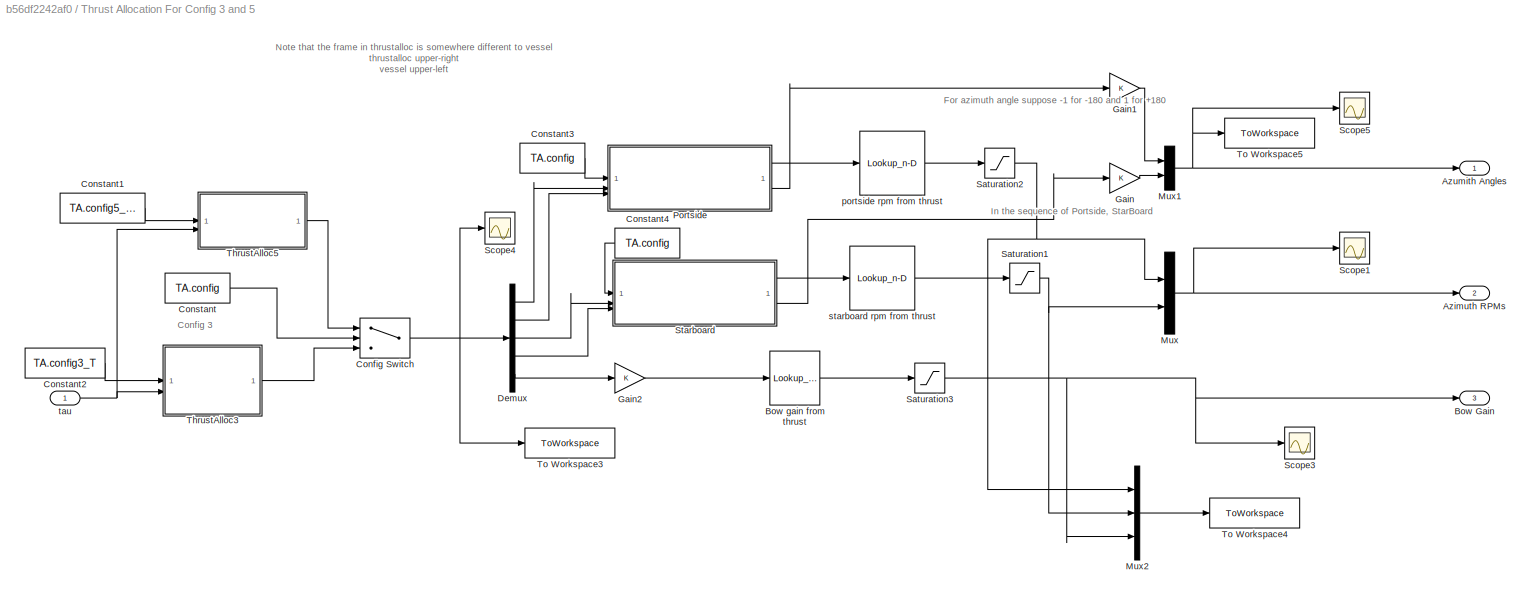
BLOCK [SubSystem] Thrust Allocation For Config 3 and 5
BLOCK [Outport] Thrust Allocation For Config 3 and 5/Azimuth RPMs
  Port = 2
BLOCK [Outport] Thrust Allocation For Config 3 and 5/Azumith Angles
BLOCK [Outport] Thrust Allocation For Config 3 and 5/Bow Gain
  Port = 3
BLOCK [Lookup_n-D] Thrust Allocation For Config 3 and 5/Bow gain from thrust
  BreakpointsForDimension1 = thrust_Raw.data_Thrust_bow(:,2)'
  InputPortMap = u0
  InternalRulePriority = Speed
  NumberOfTableDimensions = 1
  RndMeth = Simplest
  Table = thrust_Raw.data_Thrust_bow(:,1)'
BLOCK [Switch] Thrust Allocation For Config 3 and 5/Config Switch
  Criteria = u2 > Threshold
  InputSameDT = off
  SaturateOnIntegerOverflow = off
  Threshold = 4
BLOCK [Constant] Thrust Allocation For Config 3 and 5/Constant
  Value = TA.config
BLOCK [Constant] Thrust Allocation For Config 3 and 5/Constant1
  Value = TA.config5_T_inv
BLOCK [Constant] Thrust Allocation For Config 3 and 5/Constant2
  Value = TA.config3_T
BLOCK [Constant] Thrust Allocation For Config 3 and 5/Constant3
  Value = TA.config
BLOCK [Constant] Thrust Allocation For Config 3 and 5/Constant4
  Value = TA.config
BLOCK [Demux] Thrust Allocation For Config 3 and 5/Demux
  Outputs = 5
BLOCK [Gain] Thrust Allocation For Config 3 and 5/Gain
BLOCK [Gain] Thrust Allocation For Config 3 and 5/Gain1
BLOCK [Gain] Thrust Allocation For Config 3 and 5/Gain2
BLOCK [Mux] Thrust Allocation For Config 3 and 5/Mux
  DisplayOption = bar
  Inputs = 2
BLOCK [Mux] Thrust Allocation For Config 3 and 5/Mux1
  DisplayOption = bar
  Inputs = 2
BLOCK [Mux] Thrust Allocation For Config 3 and 5/Mux2
  DisplayOption = bar
  Inputs = 3
BLOCK [SubSystem] Thrust Allocation For Config 3 and 5/Portside
  ErrorFcn = Stateflow.Translate.translate
  PermitHierarchicalResolution = ExplicitOnly
  SFBlockType = MATLAB Function
  TreatAsAtomicUnit = on
BLOCK [Demux] Thrust Allocation For Config 3 and 5/Portside/ Demux 
  Outputs = 1
BLOCK [S-Function] Thrust Allocation For Config 3 and 5/Portside/ SFunction 
  EnableBusSupport = on
  FunctionName = sf_sfun
  PortCounts = [3 3]
  SFcnIsStateOwnerBlock = off
  SFunctionDeploymentMode = off
  Tag = Stateflow S-Function 8
BLOCK [Terminator] Thrust Allocation For Config 3 and 5/Portside/ Terminator 
BLOCK [Inport] Thrust Allocation For Config 3 and 5/Portside/config
BLOCK [Outport] Thrust Allocation For Config 3 and 5/Portside/f_angle
  Port = 2
BLOCK [Outport] Thrust Allocation For Config 3 and 5/Portside/f_gain
BLOCK [Inport] Thrust Allocation For Config 3 and 5/Portside/force_x
  Port = 2
BLOCK [Inport] Thrust Allocation For Config 3 and 5/Portside/force_y
  Port = 3
BLOCK [Saturate] Thrust Allocation For Config 3 and 5/Saturation1
  LowerLimit = -1100
  UpperLimit = 1100
BLOCK [Saturate] Thrust Allocation For Config 3 and 5/Saturation2
  LowerLimit = -1100
  UpperLimit = 1100
BLOCK [Saturate] Thrust Allocation For Config 3 and 5/Saturation3
  LowerLimit = -0.65
  UpperLimit = 0.65
BLOCK [Scope] Thrust Allocation For Config 3 and 5/Scope1
  Floating = off
  NumInputPorts = 1
  ScopeSpecificationString = Simulink.scopes.TimeScopeBlockCfg('CurrentConfiguration', extmgr.ConfigurationSet(extmgr.Configuration('Core','General UI',true),extmgr.Configuration('Core','Source UI',true),extmgr.Configuration('Sources','WiredSimulink',true,'DataLoggingVariableName','ScopeData3'),extmgr.Configuration('Visuals','Time Domain',true,'SerializedDisplays',{struct('MinYLimReal','-108.21766','MaxYLimReal','974.69168','...<+1516ch>
BLOCK [Scope] Thrust Allocation For Config 3 and 5/Scope3
  Floating = off
  NumInputPorts = 1
  ScopeSpecificationString = Simulink.scopes.TimeScopeBlockCfg('CurrentConfiguration', extmgr.ConfigurationSet(extmgr.Configuration('Core','General UI',true),extmgr.Configuration('Core','Source UI',true),extmgr.Configuration('Sources','WiredSimulink',true,'DataLoggingVariableName','ScopeData4'),extmgr.Configuration('Visuals','Time Domain',true,'SerializedDisplays',{struct('MinYLimReal','-0.02318','MaxYLimReal','0.20865','YLab...<+1458ch>
BLOCK [Scope] Thrust Allocation For Config 3 and 5/Scope4
  Floating = off
  NumInputPorts = 1
  ScopeSpecificationString = Simulink.scopes.TimeScopeBlockCfg('CurrentConfiguration', extmgr.ConfigurationSet(extmgr.Configuration('Core','General UI',true),extmgr.Configuration('Core','Source UI',true),extmgr.Configuration('Sources','WiredSimulink',true,'DataLoggingVariableName','ScopeData5'),extmgr.Configuration('Visuals','Time Domain',true,'SerializedDisplays',{struct('MinYLimReal','-1.49413','MaxYLimReal','1.44235','YLab...<+1680ch>
BLOCK [Scope] Thrust Allocation For Config 3 and 5/Scope5
  Floating = off
  NumInputPorts = 1
  ScopeSpecificationString = Simulink.scopes.TimeScopeBlockCfg('CurrentConfiguration', extmgr.ConfigurationSet(extmgr.Configuration('Core','General UI',true),extmgr.Configuration('Core','Source UI',true),extmgr.Configuration('Sources','WiredSimulink',true,'DataLoggingVariableName','ScopeData6'),extmgr.Configuration('Visuals','Time Domain',true,'SerializedDisplays',{struct('MinYLimReal','-1.20039','MaxYLimReal','1.24273','YLab...<+1493ch>
BLOCK [SubSystem] Thrust Allocation For Config 3 and 5/Starboard
  ErrorFcn = Stateflow.Translate.translate
  PermitHierarchicalResolution = ExplicitOnly
  SFBlockType = MATLAB Function
  TreatAsAtomicUnit = on
BLOCK [Demux] Thrust Allocation For Config 3 and 5/Starboard/ Demux 
  Outputs = 1
BLOCK [S-Function] Thrust Allocation For Config 3 and 5/Starboard/ SFunction 
  EnableBusSupport = on
  FunctionName = sf_sfun
  PortCounts = [3 3]
  SFcnIsStateOwnerBlock = off
  SFunctionDeploymentMode = off
  Tag = Stateflow S-Function 9
BLOCK [Terminator] Thrust Allocation For Config 3 and 5/Starboard/ Terminator 
BLOCK [Inport] Thrust Allocation For Config 3 and 5/Starboard/config
BLOCK [Outport] Thrust Allocation For Config 3 and 5/Starboard/f_angle
  Port = 2
BLOCK [Outport] Thrust Allocation For Config 3 and 5/Starboard/f_gain
BLOCK [Inport] Thrust Allocation For Config 3 and 5/Starboard/force_x
  Port = 2
BLOCK [Inport] Thrust Allocation For Config 3 and 5/Starboard/force_y
  Port = 3
BLOCK [SubSystem] Thrust Allocation For Config 3 and 5/ThrustAlloc3
  ErrorFcn = Stateflow.Translate.translate
  PermitHierarchicalResolution = ExplicitOnly
  SFBlockType = MATLAB Function
  TreatAsAtomicUnit = on
BLOCK [Demux] Thrust Allocation For Config 3 and 5/ThrustAlloc3/ Demux 
  Outputs = 1
BLOCK [S-Function] Thrust Allocation For Config 3 and 5/ThrustAlloc3/ SFunction 
  EnableBusSupport = on
  FunctionName = sf_sfun
  PortCounts = [2 2]
  SFcnIsStateOwnerBlock = off
  SFunctionDeploymentMode = off
  Tag = Stateflow S-Function 10
BLOCK [Terminator] Thrust Allocation For Config 3 and 5/ThrustAlloc3/ Terminator 
BLOCK [Inport] Thrust Allocation For Config 3 and 5/ThrustAlloc3/config_T
BLOCK [Inport] Thrust Allocation For Config 3 and 5/ThrustAlloc3/tau
  Port = 2
BLOCK [Outport] Thrust Allocation For Config 3 and 5/ThrustAlloc3/y
BLOCK [SubSystem] Thrust Allocation For Config 3 and 5/ThrustAlloc5
  ErrorFcn = Stateflow.Translate.translate
  PermitHierarchicalResolution = ExplicitOnly
  SFBlockType = MATLAB Function
  TreatAsAtomicUnit = on
BLOCK [Demux] Thrust Allocation For Config 3 and 5/ThrustAlloc5/ Demux 
  Outputs = 1
BLOCK [S-Function] Thrust Allocation For Config 3 and 5/ThrustAlloc5/ SFunction 
  EnableBusSupport = on
  FunctionName = sf_sfun
  PortCounts = [2 2]
  SFcnIsStateOwnerBlock = off
  SFunctionDeploymentMode = off
  Tag = Stateflow S-Function 18
BLOCK [Terminator] Thrust Allocation For Config 3 and 5/ThrustAlloc5/ Terminator 
BLOCK [Inport] Thrust Allocation For Config 3 and 5/ThrustAlloc5/config_T_inv
BLOCK [Inport] Thrust Allocation For Config 3 and 5/ThrustAlloc5/tau
  Port = 2
BLOCK [Outport] Thrust Allocation For Config 3 and 5/ThrustAlloc5/y
BLOCK [ToWorkspace] Thrust Allocation For Config 3 and 5/To Workspace3
  FixptAsFi = on
  MaxDataPoints = inf
  SampleTime = -1
  VariableName = thrust_ref
BLOCK [ToWorkspace] Thrust Allocation For Config 3 and 5/To Workspace4
  FixptAsFi = on
  MaxDataPoints = inf
  SampleTime = -1
  VariableName = speed_ref
BLOCK [ToWorkspace] Thrust Allocation For Config 3 and 5/To Workspace5
  FixptAsFi = on
  MaxDataPoints = inf
  SampleTime = -1
  VariableName = angle_ref
BLOCK [Lookup_n-D] Thrust Allocation For Config 3 and 5/portside rpm from thrust
  BreakpointsForDimension1 = thrust_Raw.data_Thrust_ps(:,2)'
  InputPortMap = u0
  InternalRulePriority = Speed
  NumberOfTableDimensions = 1
  RndMeth = Simplest
  Table = thrust_Raw.data_Thrust_ps(:,1)'
BLOCK [Lookup_n-D] Thrust Allocation For Config 3 and 5/starboard rpm from thrust
  BreakpointsForDimension1 = thrust_Raw.data_Thrust_sb(:,2)'
  InputPortMap = u0
  InternalRulePriority = Speed
  NumberOfTableDimensions = 1
  RndMeth = Simplest
  Table = thrust_Raw.data_Thrust_sb(:,1)'
BLOCK [Inport] Thrust Allocation For Config 3 and 5/tau
BLOCK [SubSystem] ThrustSimulator
BLOCK [Inport] ThrustSimulator/Azimuth angles
BLOCK [Lookup_n-D] ThrustSimulator/Bow thrust from gain
  BreakpointsForDimension1 = thrust_Raw.data_Thrust_bow(:,1)'
  InputPortMap = u0
  InternalRulePriority = Speed
  NumberOfTableDimensions = 1
  RndMeth = Simplest
  Table = thrust_Raw.data_Thrust_bow(:,2)'
BLOCK [Constant] ThrustSimulator/Constant
  Value = TSim.config3_T
BLOCK [Demux] ThrustSimulator/Demux
  Outputs = 2
BLOCK [Demux] ThrustSimulator/Demux2
  Outputs = 2
BLOCK [Gain] ThrustSimulator/Gain1
  Gain = pi
BLOCK [Gain] ThrustSimulator/Gain2
BLOCK [Gain] ThrustSimulator/Gain3
BLOCK [Gain] ThrustSimulator/Gain4
BLOCK [Gain] ThrustSimulator/Gain5
BLOCK [Gain] ThrustSimulator/Gain6
BLOCK [Lookup_n-D] ThrustSimulator/Port thrust from rpm
  BreakpointsForDimension1 = thrust_Raw.data_Thrust_ps(:,1)'
  InputPortMap = u0
  InternalRulePriority = Speed
  NumberOfTableDimensions = 1
  RndMeth = Simplest
  Table = thrust_Raw.data_Thrust_ps(:,2)'
BLOCK [Saturate] ThrustSimulator/Saturation
  LowerLimit = -1100
  UpperLimit = 1100
BLOCK [Saturate] ThrustSimulator/Saturation2
  LowerLimit = -0.65
  UpperLimit = 0.65
BLOCK [Saturate] ThrustSimulator/Saturation4
  LowerLimit = -1
  UpperLimit = 1
BLOCK [Lookup_n-D] ThrustSimulator/Stbd thrust from rpm
  BreakpointsForDimension1 = thrust_Raw.data_Thrust_sb(:,1)'
  InputPortMap = u0
  InternalRulePriority = Speed
  NumberOfTableDimensions = 1
  RndMeth = Simplest
  Table = thrust_Raw.data_Thrust_sb(:,2)'
BLOCK [Outport] ThrustSimulator/Tau
BLOCK [SubSystem] ThrustSimulator/Thrust Simulator
  ErrorFcn = Stateflow.Translate.translate
  PermitHierarchicalResolution = ExplicitOnly
  SFBlockType = MATLAB Function
  TreatAsAtomicUnit = on
BLOCK [Demux] ThrustSimulator/Thrust Simulator/ Demux 
  Outputs = 1
BLOCK [S-Function] ThrustSimulator/Thrust Simulator/ SFunction 
  EnableBusSupport = on
  FunctionName = sf_sfun
  PortCounts = [6 2]
  SFcnIsStateOwnerBlock = off
  SFunctionDeploymentMode = off
  Tag = Stateflow S-Function 7
BLOCK [Terminator] ThrustSimulator/Thrust Simulator/ Terminator 
BLOCK [Inport] ThrustSimulator/Thrust Simulator/T
BLOCK [Inport] ThrustSimulator/Thrust Simulator/a_ps
  Port = 2
BLOCK [Inport] ThrustSimulator/Thrust Simulator/a_sb
  Port = 3
BLOCK [Inport] ThrustSimulator/Thrust Simulator/g_bow
  Port = 6
BLOCK [Inport] ThrustSimulator/Thrust Simulator/u_ps
  Port = 4
BLOCK [Inport] ThrustSimulator/Thrust Simulator/u_sb
  Port = 5
BLOCK [Outport] ThrustSimulator/Thrust Simulator/y
BLOCK [Inport] ThrustSimulator/Thruster rpms
  Port = 2
BLOCK [Inport] ThrustSimulator/bow gain
  Port = 3
BLOCK [ToWorkspace] To Workspace
  FixptAsFi = on
  MaxDataPoints = inf
  SampleTime = -1
  VariableName = Eta
BLOCK [ToWorkspace] To Workspace1
  FixptAsFi = on
  MaxDataPoints = inf
  SampleTime = -1
  VariableName = V
BLOCK [ToWorkspace] To Workspace2
  FixptAsFi = on
  MaxDataPoints = inf
  SampleTime = -1
  VariableName = dcon_out
BLOCK [ToWorkspace] To Workspace3
  FixptAsFi = on
  MaxDataPoints = inf
  SampleTime = -1
  VariableName = Tau_all
BLOCK [ToWorkspace] To Workspace4
  FixptAsFi = on
  MaxDataPoints = inf
  SampleTime = -1
  VariableName = bat_out
BLOCK [ToWorkspace] To Workspace5
  FixptAsFi = on
  MaxDataPoints = inf
  SampleTime = -1
  VariableName = power_out
BLOCK [ToWorkspace] To Workspace6
  FixptAsFi = on
  MaxDataPoints = inf
  SampleTime = -1
  VariableName = KM_est_out
BLOCK [SubSystem] Wind Load Generator
BLOCK [Constant] Wind Load Generator/Constant
  Value = EN.wind_config
BLOCK [Constant] Wind Load Generator/Constant1
  Value = 0
BLOCK [Demux] Wind Load Generator/Demux1
  Outputs = 2
BLOCK [Inport] Wind Load Generator/Eta(3), Psi
BLOCK [SubSystem] Wind Load Generator/MATLAB Function
  ErrorFcn = Stateflow.Translate.translate
  PermitHierarchicalResolution = ExplicitOnly
  SFBlockType = MATLAB Function
  TreatAsAtomicUnit = on
BLOCK [Demux] Wind Load Generator/MATLAB Function/ Demux 
  Outputs = 1
BLOCK [S-Function] Wind Load Generator/MATLAB Function/ SFunction 
  EnableBusSupport = on
  FunctionName = sf_sfun
  PortCounts = [2 2]
  SFcnIsStateOwnerBlock = off
  SFunctionDeploymentMode = off
  Tag = Stateflow S-Function 5
BLOCK [Terminator] Wind Load Generator/MATLAB Function/ Terminator 
BLOCK [Inport] Wind Load Generator/MATLAB Function/config
BLOCK [Inport] Wind Load Generator/MATLAB Function/u
  Port = 2
BLOCK [Outport] Wind Load Generator/MATLAB Function/y
BLOCK [Sum] Wind Load Generator/Minus
  IconShape = rectangular
  Inputs = +-
BLOCK [Mux] Wind Load Generator/Mux
  DisplayOption = bar
  Inputs = 3
BLOCK [SubSystem] Wind Load Generator/Rotate global velocity to local
BLOCK [Gain] Wind Load Generator/Rotate global velocity to local/Gain
BLOCK [Gain] Wind Load Generator/Rotate global velocity to local/Gain4
BLOCK [Gain] Wind Load Generator/Rotate global velocity to local/Gain5
BLOCK [Inport] Wind Load Generator/Rotate global velocity to local/In1
BLOCK [Inport] Wind Load Generator/Rotate global velocity to local/In2
  Port = 2
BLOCK [Inport] Wind Load Generator/Rotate global velocity to local/In4
  Port = 3
BLOCK [SubSystem] Wind Load Generator/Rotate global velocity to local/Local to global x 
BLOCK [Sum] Wind Load Generator/Rotate global velocity to local/Local to global x /Add
  IconShape = rectangular
BLOCK [Product] Wind Load Generator/Rotate global velocity to local/Local to global x /Product
BLOCK [Product] Wind Load Generator/Rotate global velocity to local/Local to global x /Product1
BLOCK [Trigonometry] Wind Load Generator/Rotate global velocity to local/Local to global x /Trigonometric Function
  Operator = cos
BLOCK [Trigonometry] Wind Load Generator/Rotate global velocity to local/Local to global x /Trigonometric Function1
BLOCK [Inport] Wind Load Generator/Rotate global velocity to local/Local to global x /X
BLOCK [Inport] Wind Load Generator/Rotate global velocity to local/Local to global x /Y
  Port = 2
BLOCK [Inport] Wind Load Generator/Rotate global velocity to local/Local to global x /theta
  Port = 3
BLOCK [Outport] Wind Load Generator/Rotate global velocity to local/Local to global x /x
  VectorParamsAs1DForOutWhenUnconnected = off
BLOCK [SubSystem] Wind Load Generator/Rotate global velocity to local/Local to global y
BLOCK [Sum] Wind Load Generator/Rotate global velocity to local/Local to global y/Add
  IconShape = rectangular
  Inputs = -+
BLOCK [Product] Wind Load Generator/Rotate global velocity to local/Local to global y/Product
BLOCK [Product] Wind Load Generator/Rotate global velocity to local/Local to global y/Product1
BLOCK [Trigonometry] Wind Load Generator/Rotate global velocity to local/Local to global y/Trigonometric Function
BLOCK [Trigonometry] Wind Load Generator/Rotate global velocity to local/Local to global y/Trigonometric Function1
  Operator = cos
BLOCK [Inport] Wind Load Generator/Rotate global velocity to local/Local to global y/X
BLOCK [Inport] Wind Load Generator/Rotate global velocity to local/Local to global y/Y
  Port = 2
BLOCK [Inport] Wind Load Generator/Rotate global velocity to local/Local to global y/theta
  Port = 3
BLOCK [Outport] Wind Load Generator/Rotate global velocity to local/Local to global y/y
  VectorParamsAs1DForOutWhenUnconnected = off
BLOCK [Outport] Wind Load Generator/Rotate global velocity to local/Out1
  VectorParamsAs1DForOutWhenUnconnected = off
BLOCK [Outport] Wind Load Generator/Rotate global velocity to local/Out2
  Port = 2
  VectorParamsAs1DForOutWhenUnconnected = off
BLOCK [Outport] Wind Load Generator/Tau_wind
BLOCK [Inport] Wind Load Generator/V (BODY)
  Port = 3
BLOCK [Inport] Wind Load Generator/wind_v (NED)
  Port = 2
BLOCK [Gain] omegaProp to omegaMotor
  Gain = 1/shaft.gearRatio1to2/shaft.gearRatio2to3
BLOCK [Gain] rads to rpm
  Gain = 60/(2*pi)
BLOCK [Gain] rpm to rads
  Gain = 2*pi/60
ANNOTATION (root): DC Motor PID & DC Motor PortSide
ANNOTATION (root): DC Motor PID & DC Motor Starboard
ANNOTATION (root): DP PID Controller
ANNOTATION (root): Power Calculation & Battery
ANNOTATION (root): Sensors & Kalman Filter
ANNOTATION (root): Thrust Allocation
ANNOTATION (root): Thrust Generator Environmenal Forces Equation of Motion
ANNOTATION (root): For azimuth angle suppose -1 for -180 and 1 for +180
ANNOTATION (root): In the sequence of Portside, StarBoard
ANNOTATION (root): Note that here tau is in the frame of 'body' instead of 'ned'
ANNOTATION (root): Note that the forces (controlled) is with respect to BODY because the error of position used in PID is in BODY
ANNOTATION (root): output sequence: U I SoC
ANNOTATION DC Motor Control PID Port: Note: here instead of 1/DC.wrated we use DC.irated/DC.wrated to formalize the error of omega to current, since the output of PID is considered as current i_a_ref
ANNOTATION DC Motor Control PID Stbd: Note: here instead of 1/DC.wrated we use DC.irated/DC.wrated to formalize the error of omega to current, since the output of PID is considered as current i_a_ref
ANNOTATION Thrust Allocation For Config 3 and 5: Config 3
ANNOTATION Thrust Allocation For Config 3 and 5: For azimuth angle suppose -1 for -180 and 1 for +180
ANNOTATION Thrust Allocation For Config 3 and 5: In the sequence of Portside, StarBoard
ANNOTATION Thrust Allocation For Config 3 and 5: Note that the frame in thrustalloc is somewhere different to vessel thrustalloc upper-right vessel upper-left
LINE Abs1:1 -> Add:2
LINE Abs:1 -> Add:1
LINE Add:1 -> Gain:1
LINE Battery/Add1:1 -> Battery/Integrator1:1
LINE Battery/Add:1 -> Battery/Integrator:1
LINE Battery/Battery Output Power:1 -> Battery/Divide:2
LINE Battery/Constant2:1 -> Battery/MATLAB Function1:1
LINE Battery/Constant3:1 -> Battery/MATLAB Function:1
LINE Battery/Constant4:1 -> Battery/MATLAB Function2:1
LINE Battery/Divide1:1 -> Battery/Add:1
LINE Battery/Divide2:1 -> Battery/Add:2
LINE Battery/Divide3:1 -> Battery/Add1:1
LINE Battery/Divide4:1 -> Battery/Add1:2
NET Battery/Divide:1 -> Battery/Gain1:1, Battery/Mux3:2, Battery/Scope7:1
NET Battery/Gain1:1 -> Battery/Gain:1, Battery/Memory1:1
NET Battery/Gain:1 -> Battery/Divide1:1, Battery/Divide3:1, Battery/Product:1
NET Battery/Integrator1:1 -> Battery/Divide4:1, Battery/Sum1:3
NET Battery/Integrator:1 -> Battery/Divide2:1, Battery/Sum1:2
NET Battery/MATLAB Function1:1 -> Battery/Divide1:2, Battery/Product1:1
NET Battery/MATLAB Function1:2 -> Battery/Divide3:2, Battery/Product2:2
LINE Battery/MATLAB Function2:1 -> Battery/Product:2
LINE Battery/MATLAB Function2:2 -> Battery/Product1:2
LINE Battery/MATLAB Function2:3 -> Battery/Product2:1
LINE Battery/MATLAB Function:1 -> Battery/Minus:2
LINE Battery/Memory1:1 -> Battery/Subsystem:1
LINE Battery/Memory:1 -> Battery/Divide:1
LINE Battery/Minus:1 -> Battery/Saturation:1
LINE Battery/Mux3:1 -> Battery/Battery_UI_SoC:1
LINE Battery/Product1:1 -> Battery/Divide2:2
LINE Battery/Product2:1 -> Battery/Divide4:2
LINE Battery/Product:1 -> Battery/Sum1:1
NET Battery/Saturation:1 -> Battery/Memory:1, Battery/Mux3:1, Battery/Scope6:1
LINE Battery/Subsystem/-Current:1 -> Battery/Subsystem/Divide:1
LINE Battery/Subsystem/Constant1:1 -> Battery/Subsystem/Divide:2
LINE Battery/Subsystem/Constant2:1 -> Battery/Subsystem/Divide1:2
LINE Battery/Subsystem/Constant3:1 -> Battery/Subsystem/Integrator:2
LINE Battery/Subsystem/Divide1:1 -> Battery/Subsystem/Integrator:1
LINE Battery/Subsystem/Divide:1 -> Battery/Subsystem/Divide1:1
LINE Battery/Subsystem/Integrator:1 -> Battery/Subsystem/SoC:1
NET Battery/Subsystem:1 -> Battery/MATLAB Function1:2, Battery/MATLAB Function2:2, Battery/MATLAB Function:2, Battery/Mux3:3, Battery/Scope3:1
LINE Battery/Sum1:1 -> Battery/Minus:1
LINE Battery:1 -> To Workspace4:1
NET Constant1:1 -> DP Discrete Controller:1, Position Error and Rotate to BODY:2
LINE Constant2:1 -> Integrator:2
LINE Constant3:1 -> Enbale Kalman?:2
LINE Constant:1 -> Add:3
NET DC Motor Control PID Port/Gain1:1 -> DC Motor Control PID Port/Error:1, DC Motor Control PID Port/PID Controller:1
LINE DC Motor Control PID Port/Minus:1 -> DC Motor Control PID Port/Transfer Fcn1:1
LINE DC Motor Control PID Port/Mux1:1 -> DC Motor Control PID Port/Scope:1
LINE DC Motor Control PID Port/PID Controller:1 -> DC Motor Control PID Port/Saturation:1
LINE DC Motor Control PID Port/Saturation1:1 -> DC Motor Control PID Port/Ea:1
NET DC Motor Control PID Port/Saturation:1 -> DC Motor Control PID Port/Minus:1, DC Motor Control PID Port/ia_ref:1
LINE DC Motor Control PID Port/Subtract:1 -> DC Motor Control PID Port/Gain1:1
LINE DC Motor Control PID Port/Transfer Fcn1:1 -> DC Motor Control PID Port/Saturation1:1
LINE DC Motor Control PID Port/i_a:1 -> DC Motor Control PID Port/Minus:2
NET DC Motor Control PID Port/omegaMotor:1 -> DC Motor Control PID Port/Mux1:2, DC Motor Control PID Port/Subtract:2
NET DC Motor Control PID Port/omegaProp to omegaMotor:1 -> DC Motor Control PID Port/Mux1:1, DC Motor Control PID Port/Subtract:1
LINE DC Motor Control PID Port/omegaPropRef:1 -> DC Motor Control PID Port/omegaProp to omegaMotor:1
NET DC Motor Control PID Port:1 -> Port propulsion system:1, Product:1
NET DC Motor Control PID Stbd/Gain1:1 -> DC Motor Control PID Stbd/Error:1, DC Motor Control PID Stbd/PID Controller:1
LINE DC Motor Control PID Stbd/Minus:1 -> DC Motor Control PID Stbd/Transfer Fcn1:1
LINE DC Motor Control PID Stbd/Mux2:1 -> DC Motor Control PID Stbd/Scope1:1
LINE DC Motor Control PID Stbd/PID Controller:1 -> DC Motor Control PID Stbd/Saturation:1
LINE DC Motor Control PID Stbd/Saturation1:1 -> DC Motor Control PID Stbd/Ea:1
NET DC Motor Control PID Stbd/Saturation:1 -> DC Motor Control PID Stbd/Minus:1, DC Motor Control PID Stbd/ia_ref:1
LINE DC Motor Control PID Stbd/Subtract:1 -> DC Motor Control PID Stbd/Gain1:1
LINE DC Motor Control PID Stbd/Transfer Fcn1:1 -> DC Motor Control PID Stbd/Saturation1:1
LINE DC Motor Control PID Stbd/i_a:1 -> DC Motor Control PID Stbd/Minus:2
NET DC Motor Control PID Stbd/omegaMotor:1 -> DC Motor Control PID Stbd/Mux2:2, DC Motor Control PID Stbd/Subtract:2
NET DC Motor Control PID Stbd/omegaProp to omegaMotor:1 -> DC Motor Control PID Stbd/Mux2:1, DC Motor Control PID Stbd/Subtract:1
LINE DC Motor Control PID Stbd/omegaPropRef:1 -> DC Motor Control PID Stbd/omegaProp to omegaMotor:1
NET DC Motor Control PID Stbd:1 -> Product1:1, Stbd  propulsion system:1
LINE DC Motor Control PID Stbd:2 -> Mux:3
LINE DC Motor Control PID Stbd:3 -> Mux:4
LINE DP Controller/Demux1:1 -> DP Controller/Gain3:1
LINE DP Controller/Demux1:2 -> DP Controller/Gain4:1
LINE DP Controller/Demux1:3 -> DP Controller/Gain5:1
LINE DP Controller/Demux2:1 -> DP Controller/Gain:1
LINE DP Controller/Demux2:2 -> DP Controller/Gain1:1
LINE DP Controller/Demux2:3 -> DP Controller/Gain2:1
LINE DP Controller/Gain1:1 -> DP Controller/Sway PID:1
LINE DP Controller/Gain2:1 -> DP Controller/Yaw PID:1
LINE DP Controller/Gain3:1 -> DP Controller/Surge PID ZN:1
LINE DP Controller/Gain4:1 -> DP Controller/Sway PID ZN:1
LINE DP Controller/Gain5:1 -> DP Controller/Yaw PID ZN:1
LINE DP Controller/Gain:1 -> DP Controller/Surge PID:1
NET DP Controller/Manual Switch:1 -> DP Controller/Require forces:1, DP Controller/To Workspace:1
LINE DP Controller/Mux1:1 -> DP Controller/Manual Switch:2
LINE DP Controller/Mux2:1 -> DP Controller/Manual Switch:1
NET DP Controller/Position error:1 -> DP Controller/Demux1:1, DP Controller/Demux2:1
LINE DP Controller/Saturation1:1 -> DP Controller/Mux1:2
LINE DP Controller/Saturation2:1 -> DP Controller/Mux1:3
LINE DP Controller/Saturation3:1 -> DP Controller/Mux2:1
LINE DP Controller/Saturation4:1 -> DP Controller/Mux2:2
LINE DP Controller/Saturation5:1 -> DP Controller/Mux2:3
LINE DP Controller/Saturation:1 -> DP Controller/Mux1:1
LINE DP Controller/Surge PID ZN:1 -> DP Controller/Saturation3:1
LINE DP Controller/Surge PID:1 -> DP Controller/Saturation:1
LINE DP Controller/Sway PID ZN:1 -> DP Controller/Saturation4:1
LINE DP Controller/Sway PID:1 -> DP Controller/Saturation1:1
LINE DP Controller/Yaw PID ZN:1 -> DP Controller/Saturation5:1
LINE DP Controller/Yaw PID:1 -> DP Controller/Saturation2:1
LINE DP Controller:1 -> Enbale Kalman?:3
LINE DP Discrete Controller/Add:1 -> DP Discrete Controller/Zero-Order Hold:1
LINE DP Discrete Controller/Constant1:1 -> DP Discrete Controller/Matrix Multiply2:1
LINE DP Discrete Controller/Constant3:1 -> DP Discrete Controller/Matrix Multiply:1
LINE DP Discrete Controller/Constant:1 -> DP Discrete Controller/Matrix Multiply1:1
LINE DP Discrete Controller/Discrete-Time Integrator:1 -> DP Discrete Controller/Add:2
LINE DP Discrete Controller/Matrix Multiply1:1 -> DP Discrete Controller/Matrix Multiply2:2
LINE DP Discrete Controller/Matrix Multiply2:1 -> DP Discrete Controller/Discrete-Time Integrator:1
LINE DP Discrete Controller/Matrix Multiply:1 -> DP Discrete Controller/Add:1
LINE DP Discrete Controller/Subtract:1 -> DP Discrete Controller/rotate error to body frame:1
LINE DP Discrete Controller/Zero-Order Hold:1 -> DP Discrete Controller/forceRequired:1
LINE DP Discrete Controller/reference state from reference eta:1 -> DP Discrete Controller/Subtract:1
LINE DP Discrete Controller/referenceEta:1 -> DP Discrete Controller/reference state from reference eta:1
NET DP Discrete Controller/rotate error to body frame:1 -> DP Discrete Controller/Matrix Multiply1:2, DP Discrete Controller/Matrix Multiply:2, DP Discrete Controller/Scope:1
LINE DP Discrete Controller/stateEstimate:1 -> DP Discrete Controller/Subtract:2
NET DP Discrete Controller:1 -> Enbale Kalman?:1, Kalman filter:2
LINE Demux:1 -> DC Motor Control PID Port:1
LINE Demux:2 -> Manual Switch:1
NET Enbale Kalman?:1 -> Fcn1:1, Thrust Allocation For Config 3 and 5:1
LINE Equations of motion/Add:1 -> Equations of motion/MATLAB Function1:3
LINE Equations of motion/CA(v_r)v_r:1 -> Equations of motion/Add:2
LINE Equations of motion/CRB(v)v:1 -> Equations of motion/Add:1
LINE Equations of motion/Constant1:1 -> Equations of motion/D(v_r)v_r:2
LINE Equations of motion/Constant2:1 -> Equations of motion/D(v_r)v_r:3
LINE Equations of motion/Constant3:1 -> Equations of motion/Mux:3
LINE Equations of motion/Constant4:1 -> Equations of motion/Integrator:2
LINE Equations of motion/Constant5:1 -> Equations of motion/Integrator1:2
LINE Equations of motion/Constant:1 -> Equations of motion/D(v_r)v_r:1
LINE Equations of motion/D(v_r)v_r:1 -> Equations of motion/MATLAB Function1:4
LINE Equations of motion/Demux:1 -> Equations of motion/Rotate global to local :1
LINE Equations of motion/Demux:2 -> Equations of motion/Rotate global to local :2
NET Equations of motion/Derivative:1 -> Equations of motion/MATLAB Function1:5, Equations of motion/Scope:1
LINE Equations of motion/Eta-dot(by R):1 -> Equations of motion/Integrator1:1
LINE Equations of motion/Fcn:1 -> Equations of motion/Rotate global to local :3
NET Equations of motion/Integrator1:1 -> Equations of motion/Eta-dot(by R):1, Equations of motion/Eta:1, Equations of motion/Fcn:1
NET Equations of motion/Integrator:1 -> Equations of motion/CRB(v)v:1, Equations of motion/Eta-dot(by R):2, Equations of motion/Minus:1, Equations of motion/V:1
LINE Equations of motion/MATLAB Function1:1 -> Equations of motion/Integrator:1
LINE Equations of motion/M_A:1 -> Equations of motion/MATLAB Function1:2
LINE Equations of motion/M_RB:1 -> Equations of motion/MATLAB Function1:1
NET Equations of motion/Minus:1 -> Equations of motion/CA(v_r)v_r:1, Equations of motion/D(v_r)v_r:4
NET Equations of motion/Mux:1 -> Equations of motion/Derivative:1, Equations of motion/Minus:2
LINE Equations of motion/Rotate global to local /Gain4:1 -> Equations of motion/Rotate global to local /Out1:1
LINE Equations of motion/Rotate global to local /Gain5:1 -> Equations of motion/Rotate global to local /Out2:1
NET Equations of motion/Rotate global to local /Gain:1 -> Equations of motion/Rotate global to local /Local to global x :3, Equations of motion/Rotate global to local /Local to global y:3
NET Equations of motion/Rotate global to local /In1:1 -> Equations of motion/Rotate global to local /Local to global x :1, Equations of motion/Rotate global to local /Local to global y:1
NET Equations of motion/Rotate global to local /In2:1 -> Equations of motion/Rotate global to local /Local to global x :2, Equations of motion/Rotate global to local /Local to global y:2
LINE Equations of motion/Rotate global to local /In3:1 -> Equations of motion/Rotate global to local /Gain:1
LINE Equations of motion/Rotate global to local /Local to global x /Add:1 -> Equations of motion/Rotate global to local /Local to global x /x:1
LINE Equations of motion/Rotate global to local /Local to global x /Product1:1 -> Equations of motion/Rotate global to local /Local to global x /Add:2
LINE Equations of motion/Rotate global to local /Local to global x /Product:1 -> Equations of motion/Rotate global to local /Local to global x /Add:1
LINE Equations of motion/Rotate global to local /Local to global x /Trigonometric Function1:1 -> Equations of motion/Rotate global to local /Local to global x /Product1:2
LINE Equations of motion/Rotate global to local /Local to global x /Trigonometric Function:1 -> Equations of motion/Rotate global to local /Local to global x /Product:2
LINE Equations of motion/Rotate global to local /Local to global x /X:1 -> Equations of motion/Rotate global to local /Local to global x /Product:1
LINE Equations of motion/Rotate global to local /Local to global x /Y:1 -> Equations of motion/Rotate global to local /Local to global x /Product1:1
NET Equations of motion/Rotate global to local /Local to global x /theta:1 -> Equations of motion/Rotate global to local /Local to global x /Trigonometric Function1:1, Equations of motion/Rotate global to local /Local to global x /Trigonometric Function:1
LINE Equations of motion/Rotate global to local /Local to global x :1 -> Equations of motion/Rotate global to local /Gain4:1
LINE Equations of motion/Rotate global to local /Local to global y/Add:1 -> Equations of motion/Rotate global to local /Local to global y/y:1
LINE Equations of motion/Rotate global to local /Local to global y/Product1:1 -> Equations of motion/Rotate global to local /Local to global y/Add:2
LINE Equations of motion/Rotate global to local /Local to global y/Product:1 -> Equations of motion/Rotate global to local /Local to global y/Add:1
LINE Equations of motion/Rotate global to local /Local to global y/Trigonometric Function1:1 -> Equations of motion/Rotate global to local /Local to global y/Product1:2
LINE Equations of motion/Rotate global to local /Local to global y/Trigonometric Function:1 -> Equations of motion/Rotate global to local /Local to global y/Product:2
LINE Equations of motion/Rotate global to local /Local to global y/X:1 -> Equations of motion/Rotate global to local /Local to global y/Product:1
LINE Equations of motion/Rotate global to local /Local to global y/Y:1 -> Equations of motion/Rotate global to local /Local to global y/Product1:1
NET Equations of motion/Rotate global to local /Local to global y/theta:1 -> Equations of motion/Rotate global to local /Local to global y/Trigonometric Function1:1, Equations of motion/Rotate global to local /Local to global y/Trigonometric Function:1
LINE Equations of motion/Rotate global to local /Local to global y:1 -> Equations of motion/Rotate global to local /Gain5:1
LINE Equations of motion/Rotate global to local :1 -> Equations of motion/Mux:1
LINE Equations of motion/Rotate global to local :2 -> Equations of motion/Mux:2
LINE Equations of motion/Tau:1 -> Equations of motion/MATLAB Function1:6
LINE Equations of motion/m:1 -> Equations of motion/CRB(v)v:2
LINE Equations of motion/v_c:1 -> Equations of motion/Demux:1
LINE Equations of motion/x_u_dot :1 -> Equations of motion/CA(v_r)v_r:2
LINE Equations of motion/y_v_dot:1 -> Equations of motion/CA(v_r)v_r:3
NET Equations of motion:1 -> Fcn:1, Mux4:2, Position Error and Rotate to BODY:1, Scope6:2, Scope:1, Sensors:1, To Workspace:1
NET Equations of motion:2 -> To Workspace1:1, Wind Load Generator:3
LINE Fcn1:1 -> Mux2:1
LINE Fcn2:1 -> Mux2:2
LINE Fcn:1 -> Wind Load Generator:1
LINE From Workspace2:1 -> Equations of motion:2
LINE From Workspace3:1 -> Wind Load Generator:2
LINE From Workspace:1 -> Manual Switch:2
LINE From1:1 -> DC Motor Control PID Stbd:3
LINE From2:1 -> DC Motor Control PID Port:2
LINE From3:1 -> DC Motor Control PID Port:3
LINE From4:1 -> Product:2
LINE From5:1 -> Product1:2
NET From:1 -> DC Motor Control PID Stbd:2, Mux:2
NET Gain:1 -> Battery:1, Integrator:1, Mux3:1, Scope3:1
LINE Integrator:1 -> Mux3:2
LINE Kalman filter/Innovation/Matrix Multiply:1 -> Kalman filter/Innovation/Subtract:2
LINE Kalman filter/Innovation/Subtract:1 -> Kalman filter/Innovation/innovation:1
LINE Kalman filter/Innovation/measurement matrix:1 -> Kalman filter/Innovation/Matrix Multiply:1
LINE Kalman filter/Innovation/measurements:1 -> Kalman filter/Innovation/Subtract:1
LINE Kalman filter/Innovation/state estimate after predict:1 -> Kalman filter/Innovation/Matrix Multiply:2
LINE Kalman filter/Innovation:1 -> Kalman filter/state estimate measurement update:1
NET Kalman filter/Kalman gain:1 -> Kalman filter/covariance estimate measurement update:1, Kalman filter/state estimate measurement update:3
LINE Kalman filter/Matrix Multiply:1 -> Kalman filter/Eta:1
LINE Kalman filter/TSampling:1 -> Kalman filter/stateTransitionMatrices:2
LINE Kalman filter/Unit Delay1:1 -> Kalman filter/covariance estimate prediction update:2
NET Kalman filter/Unit Delay:1 -> Kalman filter/Matrix Multiply:2, Kalman filter/state estimate prediction update:2, Kalman filter/state:1, Kalman filter/stateTransitionMatrices:3
LINE Kalman filter/continuousStateTransitionAround0:1 -> Kalman filter/stateTransitionMatrices:1
LINE Kalman filter/covariance estimate measurement update:1 -> Kalman filter/Unit Delay1:1
NET Kalman filter/covariance estimate prediction update:1 -> Kalman filter/Kalman gain:1, Kalman filter/covariance estimate measurement update:3
LINE Kalman filter/inputStateTransition:1 -> Kalman filter/state estimate prediction update:3
NET Kalman filter/measurement matrix:1 -> Kalman filter/Innovation:2, Kalman filter/Kalman gain:2, Kalman filter/Matrix Multiply:1, Kalman filter/covariance estimate measurement update:2
LINE Kalman filter/measurement noise covariance:1 -> Kalman filter/Kalman gain:3
LINE Kalman filter/measurements:1 -> Kalman filter/Innovation:1
LINE Kalman filter/process noise covariance:1 -> Kalman filter/covariance estimate prediction update:3
LINE Kalman filter/state estimate measurement update/Add1:1 -> Kalman filter/state estimate measurement update/state estimate after measurements:1
LINE Kalman filter/state estimate measurement update/Kalman gain:1 -> Kalman filter/state estimate measurement update/Matrix Multiply:1
LINE Kalman filter/state estimate measurement update/Matrix Multiply:1 -> Kalman filter/state estimate measurement update/Add1:1
LINE Kalman filter/state estimate measurement update/innovation:1 -> Kalman filter/state estimate measurement update/Matrix Multiply:2
LINE Kalman filter/state estimate measurement update/state estimate after predict:1 -> Kalman filter/state estimate measurement update/Add1:2
LINE Kalman filter/state estimate measurement update:1 -> Kalman filter/Unit Delay:1
LINE Kalman filter/state estimate prediction update/Add1:1 -> Kalman filter/state estimate prediction update/Add2:2
LINE Kalman filter/state estimate prediction update/Add2:1 -> Kalman filter/state estimate prediction update/state estimate after predict:1
LINE Kalman filter/state estimate prediction update/Matrix Multiply1:1 -> Kalman filter/state estimate prediction update/Add2:1
LINE Kalman filter/state estimate prediction update/Matrix Multiply:1 -> Kalman filter/state estimate prediction update/Add1:1
LINE Kalman filter/state estimate prediction update/input state transition:1 -> Kalman filter/state estimate prediction update/Matrix Multiply:1
LINE Kalman filter/state estimate prediction update/state estimate:1 -> Kalman filter/state estimate prediction update/Matrix Multiply1:2
LINE Kalman filter/state estimate prediction update/state offset:1 -> Kalman filter/state estimate prediction update/Add1:2
LINE Kalman filter/state estimate prediction update/state transition:1 -> Kalman filter/state estimate prediction update/Matrix Multiply1:1
LINE Kalman filter/state estimate prediction update/tau:1 -> Kalman filter/state estimate prediction update/Matrix Multiply:2
NET Kalman filter/state estimate prediction update:1 -> Kalman filter/Innovation:3, Kalman filter/state estimate measurement update:2
LINE Kalman filter/stateOffset:1 -> Kalman filter/state estimate prediction update:5
NET Kalman filter/stateTransitionMatrices:1 -> Kalman filter/covariance estimate prediction update:1, Kalman filter/state estimate prediction update:1
LINE Kalman filter/tau:1 -> Kalman filter/state estimate prediction update:4
NET Kalman filter:1 -> Mux4:1, Scope6:1
LINE Kalman filter:2 -> DP Discrete Controller:2
NET Manual Switch:1 -> DC Motor Control PID Stbd:1, omegaProp to omegaMotor:1
LINE Mux1:1 -> rads to rpm:1
LINE Mux2:1 -> Scope1:1
LINE Mux3:1 -> To Workspace5:1
LINE Mux4:1 -> To Workspace6:1
LINE Mux:1 -> To Workspace2:1
NET Port propulsion system/DC Motor armature:1 -> Port propulsion system/Shaft:1, Port propulsion system/T_em:1
LINE Port propulsion system/DC Motor armature:2 -> Port propulsion system/i_a:1
LINE Port propulsion system/Ea:1 -> Port propulsion system/DC Motor armature:1
LINE Port propulsion system/Port propeller/Constant1:1 -> Port propulsion system/Port propeller/KT from thrust and rps:4
LINE Port propulsion system/Port propeller/Constant2:1 -> Port propulsion system/Port propeller/Q from KQ:3
LINE Port propulsion system/Port propeller/Constant3:1 -> Port propulsion system/Port propeller/Q from KQ:4
LINE Port propulsion system/Port propeller/Constant:1 -> Port propulsion system/Port propeller/KT from thrust and rps:3
LINE Port propulsion system/Port propeller/J from KT:1 -> Port propulsion system/Port propeller/KQ from J:1
LINE Port propulsion system/Port propeller/KQ from J:1 -> Port propulsion system/Port propeller/Q from KQ:1
LINE Port propulsion system/Port propeller/KT from thrust and rps:1 -> Port propulsion system/Port propeller/J from KT:1
LINE Port propulsion system/Port propeller/Port thrust from rpm:1 -> Port propulsion system/Port propeller/KT from thrust and rps:1
LINE Port propulsion system/Port propeller/Product:1 -> Port propulsion system/Port propeller/Q:1
LINE Port propulsion system/Port propeller/Q from KQ:1 -> Port propulsion system/Port propeller/Product:2
LINE Port propulsion system/Port propeller/Sign:1 -> Port propulsion system/Port propeller/Product:1
NET Port propulsion system/Port propeller/omegaProp:1 -> Port propulsion system/Port propeller/Sign:1, Port propulsion system/Port propeller/rad//s to rps:1
NET Port propulsion system/Port propeller/rad//s to rps:1 -> Port propulsion system/Port propeller/KT from thrust and rps:2, Port propulsion system/Port propeller/Q from KQ:2, Port propulsion system/Port propeller/rps to rpm:1
LINE Port propulsion system/Port propeller/rps to rpm:1 -> Port propulsion system/Port propeller/Port thrust from rpm:1
NET Port propulsion system/Port propeller:1 -> Port propulsion system/Scope1:1, Port propulsion system/Shaft:2
NET Port propulsion system/Shaft:1 -> Port propulsion system/DC Motor armature:2, Port propulsion system/Scope:1, Port propulsion system/omegaMotor:1
NET Port propulsion system/Shaft:2 -> Port propulsion system/Port propeller:1, Port propulsion system/omegaProp:1
LINE Port propulsion system:2 -> Goto3:1
LINE Port propulsion system:3 -> Goto2:1
LINE Port propulsion system:4 -> Mux1:1
LINE Position Error and Rotate to BODY/Demux4:1 -> Position Error and Rotate to BODY/Rotate global position error to local:2
LINE Position Error and Rotate to BODY/Demux4:2 -> Position Error and Rotate to BODY/Rotate global position error to local:3
LINE Position Error and Rotate to BODY/Demux4:3 -> Position Error and Rotate to BODY/Rotate global position error to local:4
NET Position Error and Rotate to BODY/Eta:1 -> Position Error and Rotate to BODY/Fcn1:1, Position Error and Rotate to BODY/Minus:1
LINE Position Error and Rotate to BODY/Eta_ref:1 -> Position Error and Rotate to BODY/Minus:2
LINE Position Error and Rotate to BODY/Fcn1:1 -> Position Error and Rotate to BODY/Rotate global position error to local:1
LINE Position Error and Rotate to BODY/Minus:1 -> Position Error and Rotate to BODY/Demux4:1
LINE Position Error and Rotate to BODY/Mux2:1 -> Position Error and Rotate to BODY/position error (BODY):1
LINE Position Error and Rotate to BODY/Rotate global position error to local/Gain4:1 -> Position Error and Rotate to BODY/Rotate global position error to local/Out1:1
LINE Position Error and Rotate to BODY/Rotate global position error to local/Gain5:1 -> Position Error and Rotate to BODY/Rotate global position error to local/Out2:1
NET Position Error and Rotate to BODY/Rotate global position error to local/Gain:1 -> Position Error and Rotate to BODY/Rotate global position error to local/Local to global x :3, Position Error and Rotate to BODY/Rotate global position error to local/Local to global y:3
NET Position Error and Rotate to BODY/Rotate global position error to local/In1:1 -> Position Error and Rotate to BODY/Rotate global position error to local/Local to global x :1, Position Error and Rotate to BODY/Rotate global position error to local/Local to global y:1
NET Position Error and Rotate to BODY/Rotate global position error to local/In2:1 -> Position Error and Rotate to BODY/Rotate global position error to local/Local to global x :2, Position Error and Rotate to BODY/Rotate global position error to local/Local to global y:2
LINE Position Error and Rotate to BODY/Rotate global position error to local/In3:1 -> Position Error and Rotate to BODY/Rotate global position error to local/Out3:1
LINE Position Error and Rotate to BODY/Rotate global position error to local/In4:1 -> Position Error and Rotate to BODY/Rotate global position error to local/Gain:1
LINE Position Error and Rotate to BODY/Rotate global position error to local/Local to global x /Add:1 -> Position Error and Rotate to BODY/Rotate global position error to local/Local to global x /x:1
LINE Position Error and Rotate to BODY/Rotate global position error to local/Local to global x /Product1:1 -> Position Error and Rotate to BODY/Rotate global position error to local/Local to global x /Add:2
LINE Position Error and Rotate to BODY/Rotate global position error to local/Local to global x /Product:1 -> Position Error and Rotate to BODY/Rotate global position error to local/Local to global x /Add:1
LINE Position Error and Rotate to BODY/Rotate global position error to local/Local to global x /Trigonometric Function1:1 -> Position Error and Rotate to BODY/Rotate global position error to local/Local to global x /Product1:2
LINE Position Error and Rotate to BODY/Rotate global position error to local/Local to global x /Trigonometric Function:1 -> Position Error and Rotate to BODY/Rotate global position error to local/Local to global x /Product:2
LINE Position Error and Rotate to BODY/Rotate global position error to local/Local to global x /X:1 -> Position Error and Rotate to BODY/Rotate global position error to local/Local to global x /Product:1
LINE Position Error and Rotate to BODY/Rotate global position error to local/Local to global x /Y:1 -> Position Error and Rotate to BODY/Rotate global position error to local/Local to global x /Product1:1
NET Position Error and Rotate to BODY/Rotate global position error to local/Local to global x /theta:1 -> Position Error and Rotate to BODY/Rotate global position error to local/Local to global x /Trigonometric Function1:1, Position Error and Rotate to BODY/Rotate global position error to local/Local to global x /Trigonometric Function:1
LINE Position Error and Rotate to BODY/Rotate global position error to local/Local to global x :1 -> Position Error and Rotate to BODY/Rotate global position error to local/Gain4:1
LINE Position Error and Rotate to BODY/Rotate global position error to local/Local to global y/Add:1 -> Position Error and Rotate to BODY/Rotate global position error to local/Local to global y/y:1
LINE Position Error and Rotate to BODY/Rotate global position error to local/Local to global y/Product1:1 -> Position Error and Rotate to BODY/Rotate global position error to local/Local to global y/Add:2
LINE Position Error and Rotate to BODY/Rotate global position error to local/Local to global y/Product:1 -> Position Error and Rotate to BODY/Rotate global position error to local/Local to global y/Add:1
LINE Position Error and Rotate to BODY/Rotate global position error to local/Local to global y/Trigonometric Function1:1 -> Position Error and Rotate to BODY/Rotate global position error to local/Local to global y/Product1:2
LINE Position Error and Rotate to BODY/Rotate global position error to local/Local to global y/Trigonometric Function:1 -> Position Error and Rotate to BODY/Rotate global position error to local/Local to global y/Product:2
LINE Position Error and Rotate to BODY/Rotate global position error to local/Local to global y/X:1 -> Position Error and Rotate to BODY/Rotate global position error to local/Local to global y/Product:1
LINE Position Error and Rotate to BODY/Rotate global position error to local/Local to global y/Y:1 -> Position Error and Rotate to BODY/Rotate global position error to local/Local to global y/Product1:1
NET Position Error and Rotate to BODY/Rotate global position error to local/Local to global y/theta:1 -> Position Error and Rotate to BODY/Rotate global position error to local/Local to global y/Trigonometric Function1:1, Position Error and Rotate to BODY/Rotate global position error to local/Local to global y/Trigonometric Function:1
LINE Position Error and Rotate to BODY/Rotate global position error to local/Local to global y:1 -> Position Error and Rotate to BODY/Rotate global position error to local/Gain5:1
LINE Position Error and Rotate to BODY/Rotate global position error to local:1 -> Position Error and Rotate to BODY/Mux2:1
LINE Position Error and Rotate to BODY/Rotate global position error to local:2 -> Position Error and Rotate to BODY/Mux2:2
LINE Position Error and Rotate to BODY/Rotate global position error to local:3 -> Position Error and Rotate to BODY/Mux2:3
NET Position Error and Rotate to BODY:1 -> DP Controller:1, Scope4:1
LINE Product1:1 -> Abs:1
LINE Product:1 -> Abs1:1
LINE Sensors/Add:1 -> Sensors/measurements:1
LINE Sensors/Matrix Multiply:1 -> Sensors/Add:1
LINE Sensors/Random Number:1 -> Sensors/Matrix Multiply:2
LINE Sensors/position:1 -> Sensors/Add:2
LINE Sensors/sqrt R:1 -> Sensors/Matrix Multiply:1
NET Sensors:1 -> Kalman filter:1, Mux4:3, Scope6:3
NET Stbd  propulsion system/DC Motor armature:1 -> Stbd  propulsion system/Shaft:1, Stbd  propulsion system/T_em:1
LINE Stbd  propulsion system/DC Motor armature:2 -> Stbd  propulsion system/i_a:1
LINE Stbd  propulsion system/Ea:1 -> Stbd  propulsion system/DC Motor armature:1
NET Stbd  propulsion system/Shaft:1 -> Stbd  propulsion system/DC Motor armature:2, Stbd  propulsion system/Scope:1, Stbd  propulsion system/omegaMotor:1
NET Stbd  propulsion system/Shaft:2 -> Stbd  propulsion system/Stbd propeller:1, Stbd  propulsion system/omegaProp:1
LINE Stbd  propulsion system/Stbd propeller/Constant1:1 -> Stbd  propulsion system/Stbd propeller/KT from thrust and rps:4
LINE Stbd  propulsion system/Stbd propeller/Constant2:1 -> Stbd  propulsion system/Stbd propeller/Q from KQ:3
LINE Stbd  propulsion system/Stbd propeller/Constant3:1 -> Stbd  propulsion system/Stbd propeller/Q from KQ:4
LINE Stbd  propulsion system/Stbd propeller/Constant:1 -> Stbd  propulsion system/Stbd propeller/KT from thrust and rps:3
LINE Stbd  propulsion system/Stbd propeller/J from KT:1 -> Stbd  propulsion system/Stbd propeller/KQ from J:1
LINE Stbd  propulsion system/Stbd propeller/KQ from J:1 -> Stbd  propulsion system/Stbd propeller/Q from KQ:1
LINE Stbd  propulsion system/Stbd propeller/KT from thrust and rps:1 -> Stbd  propulsion system/Stbd propeller/J from KT:1
LINE Stbd  propulsion system/Stbd propeller/Product:1 -> Stbd  propulsion system/Stbd propeller/Q:1
LINE Stbd  propulsion system/Stbd propeller/Q from KQ:1 -> Stbd  propulsion system/Stbd propeller/Product:2
LINE Stbd  propulsion system/Stbd propeller/Sign:1 -> Stbd  propulsion system/Stbd propeller/Product:1
LINE Stbd  propulsion system/Stbd propeller/Stbd thrust from rpm:1 -> Stbd  propulsion system/Stbd propeller/KT from thrust and rps:1
NET Stbd  propulsion system/Stbd propeller/omegaProp:1 -> Stbd  propulsion system/Stbd propeller/Sign:1, Stbd  propulsion system/Stbd propeller/rad//s to rps:1
NET Stbd  propulsion system/Stbd propeller/rad//s to rps:1 -> Stbd  propulsion system/Stbd propeller/KT from thrust and rps:2, Stbd  propulsion system/Stbd propeller/Q from KQ:2, Stbd  propulsion system/Stbd propeller/rps to rpm:1
LINE Stbd  propulsion system/Stbd propeller/rps to rpm:1 -> Stbd  propulsion system/Stbd propeller/Stbd thrust from rpm:1
NET Stbd  propulsion system/Stbd propeller:1 -> Stbd  propulsion system/Scope1:1, Stbd  propulsion system/Shaft:2
LINE Stbd  propulsion system:2 -> Goto1:1
LINE Stbd  propulsion system:3 -> Goto:1
LINE Stbd  propulsion system:4 -> Mux1:2
NET Sum:1 -> Equations of motion:1, To Workspace3:1
LINE Thrust Allocation For Config 3 and 5/Bow gain from thrust:1 -> Thrust Allocation For Config 3 and 5/Saturation3:1
NET Thrust Allocation For Config 3 and 5/Config Switch:1 -> Thrust Allocation For Config 3 and 5/Demux:1, Thrust Allocation For Config 3 and 5/Scope4:1, Thrust Allocation For Config 3 and 5/To Workspace3:1
LINE Thrust Allocation For Config 3 and 5/Constant1:1 -> Thrust Allocation For Config 3 and 5/ThrustAlloc5:1
LINE Thrust Allocation For Config 3 and 5/Constant2:1 -> Thrust Allocation For Config 3 and 5/ThrustAlloc3:1
LINE Thrust Allocation For Config 3 and 5/Constant3:1 -> Thrust Allocation For Config 3 and 5/Portside:1
LINE Thrust Allocation For Config 3 and 5/Constant4:1 -> Thrust Allocation For Config 3 and 5/Starboard:1
LINE Thrust Allocation For Config 3 and 5/Constant:1 -> Thrust Allocation For Config 3 and 5/Config Switch:2
LINE Thrust Allocation For Config 3 and 5/Demux:1 -> Thrust Allocation For Config 3 and 5/Portside:2
LINE Thrust Allocation For Config 3 and 5/Demux:2 -> Thrust Allocation For Config 3 and 5/Portside:3
LINE Thrust Allocation For Config 3 and 5/Demux:3 -> Thrust Allocation For Config 3 and 5/Starboard:2
LINE Thrust Allocation For Config 3 and 5/Demux:4 -> Thrust Allocation For Config 3 and 5/Starboard:3
LINE Thrust Allocation For Config 3 and 5/Demux:5 -> Thrust Allocation For Config 3 and 5/Gain2:1
LINE Thrust Allocation For Config 3 and 5/Gain1:1 -> Thrust Allocation For Config 3 and 5/Mux1:1
LINE Thrust Allocation For Config 3 and 5/Gain2:1 -> Thrust Allocation For Config 3 and 5/Bow gain from thrust:1
LINE Thrust Allocation For Config 3 and 5/Gain:1 -> Thrust Allocation For Config 3 and 5/Mux1:2
NET Thrust Allocation For Config 3 and 5/Mux1:1 -> Thrust Allocation For Config 3 and 5/Azumith Angles:1, Thrust Allocation For Config 3 and 5/Scope5:1, Thrust Allocation For Config 3 and 5/To Workspace5:1
LINE Thrust Allocation For Config 3 and 5/Mux2:1 -> Thrust Allocation For Config 3 and 5/To Workspace4:1
NET Thrust Allocation For Config 3 and 5/Mux:1 -> Thrust Allocation For Config 3 and 5/Azimuth RPMs:1, Thrust Allocation For Config 3 and 5/Scope1:1
LINE Thrust Allocation For Config 3 and 5/Portside:1 -> Thrust Allocation For Config 3 and 5/portside rpm from thrust:1
LINE Thrust Allocation For Config 3 and 5/Portside:2 -> Thrust Allocation For Config 3 and 5/Gain1:1
NET Thrust Allocation For Config 3 and 5/Saturation1:1 -> Thrust Allocation For Config 3 and 5/Mux2:2, Thrust Allocation For Config 3 and 5/Mux:2
NET Thrust Allocation For Config 3 and 5/Saturation2:1 -> Thrust Allocation For Config 3 and 5/Mux2:1, Thrust Allocation For Config 3 and 5/Mux:1
NET Thrust Allocation For Config 3 and 5/Saturation3:1 -> Thrust Allocation For Config 3 and 5/Bow Gain:1, Thrust Allocation For Config 3 and 5/Mux2:3, Thrust Allocation For Config 3 and 5/Scope3:1
LINE Thrust Allocation For Config 3 and 5/Starboard:1 -> Thrust Allocation For Config 3 and 5/starboard rpm from thrust:1
LINE Thrust Allocation For Config 3 and 5/Starboard:2 -> Thrust Allocation For Config 3 and 5/Gain:1
LINE Thrust Allocation For Config 3 and 5/ThrustAlloc3:1 -> Thrust Allocation For Config 3 and 5/Config Switch:3
LINE Thrust Allocation For Config 3 and 5/ThrustAlloc5:1 -> Thrust Allocation For Config 3 and 5/Config Switch:1
LINE Thrust Allocation For Config 3 and 5/portside rpm from thrust:1 -> Thrust Allocation For Config 3 and 5/Saturation2:1
LINE Thrust Allocation For Config 3 and 5/starboard rpm from thrust:1 -> Thrust Allocation For Config 3 and 5/Saturation1:1
NET Thrust Allocation For Config 3 and 5/tau:1 -> Thrust Allocation For Config 3 and 5/ThrustAlloc3:2, Thrust Allocation For Config 3 and 5/ThrustAlloc5:2
NET Thrust Allocation For Config 3 and 5:1 -> Scope2:1, ThrustSimulator:1
LINE Thrust Allocation For Config 3 and 5:2 -> rpm to rads:1
LINE Thrust Allocation For Config 3 and 5:3 -> ThrustSimulator:3
LINE ThrustSimulator/Azimuth angles:1 -> ThrustSimulator/Saturation4:1
LINE ThrustSimulator/Bow thrust from gain:1 -> ThrustSimulator/Gain6:1
LINE ThrustSimulator/Constant:1 -> ThrustSimulator/Thrust Simulator:1
LINE ThrustSimulator/Demux2:1 -> ThrustSimulator/Port thrust from rpm:1
LINE ThrustSimulator/Demux2:2 -> ThrustSimulator/Stbd thrust from rpm:1
LINE ThrustSimulator/Demux:1 -> ThrustSimulator/Gain2:1
LINE ThrustSimulator/Demux:2 -> ThrustSimulator/Gain3:1
LINE ThrustSimulator/Gain1:1 -> ThrustSimulator/Demux:1
LINE ThrustSimulator/Gain2:1 -> ThrustSimulator/Thrust Simulator:2
LINE ThrustSimulator/Gain3:1 -> ThrustSimulator/Thrust Simulator:3
LINE ThrustSimulator/Gain4:1 -> ThrustSimulator/Thrust Simulator:4
LINE ThrustSimulator/Gain5:1 -> ThrustSimulator/Thrust Simulator:5
LINE ThrustSimulator/Gain6:1 -> ThrustSimulator/Thrust Simulator:6
LINE ThrustSimulator/Port thrust from rpm:1 -> ThrustSimulator/Gain4:1
LINE ThrustSimulator/Saturation2:1 -> ThrustSimulator/Bow thrust from gain:1
LINE ThrustSimulator/Saturation4:1 -> ThrustSimulator/Gain1:1
LINE ThrustSimulator/Saturation:1 -> ThrustSimulator/Demux2:1
LINE ThrustSimulator/Stbd thrust from rpm:1 -> ThrustSimulator/Gain5:1
LINE ThrustSimulator/Thrust Simulator:1 -> ThrustSimulator/Tau:1
LINE ThrustSimulator/Thruster rpms:1 -> ThrustSimulator/Saturation:1
LINE ThrustSimulator/bow gain:1 -> ThrustSimulator/Saturation2:1
NET ThrustSimulator:1 -> Fcn2:1, Scope5:1, Sum:2
LINE Wind Load Generator/Constant1:1 -> Wind Load Generator/Mux:3
LINE Wind Load Generator/Constant:1 -> Wind Load Generator/MATLAB Function:1
LINE Wind Load Generator/Demux1:1 -> Wind Load Generator/Rotate global velocity to local:1
LINE Wind Load Generator/Demux1:2 -> Wind Load Generator/Rotate global velocity to local:2
LINE Wind Load Generator/Eta(3), Psi:1 -> Wind Load Generator/Rotate global velocity to local:3
LINE Wind Load Generator/MATLAB Function:1 -> Wind Load Generator/Tau_wind:1
LINE Wind Load Generator/Minus:1 -> Wind Load Generator/MATLAB Function:2
LINE Wind Load Generator/Mux:1 -> Wind Load Generator/Minus:1
LINE Wind Load Generator/Rotate global velocity to local/Gain4:1 -> Wind Load Generator/Rotate global velocity to local/Out1:1
LINE Wind Load Generator/Rotate global velocity to local/Gain5:1 -> Wind Load Generator/Rotate global velocity to local/Out2:1
NET Wind Load Generator/Rotate global velocity to local/Gain:1 -> Wind Load Generator/Rotate global velocity to local/Local to global x :3, Wind Load Generator/Rotate global velocity to local/Local to global y:3
NET Wind Load Generator/Rotate global velocity to local/In1:1 -> Wind Load Generator/Rotate global velocity to local/Local to global x :1, Wind Load Generator/Rotate global velocity to local/Local to global y:1
NET Wind Load Generator/Rotate global velocity to local/In2:1 -> Wind Load Generator/Rotate global velocity to local/Local to global x :2, Wind Load Generator/Rotate global velocity to local/Local to global y:2
LINE Wind Load Generator/Rotate global velocity to local/In4:1 -> Wind Load Generator/Rotate global velocity to local/Gain:1
LINE Wind Load Generator/Rotate global velocity to local/Local to global x /Add:1 -> Wind Load Generator/Rotate global velocity to local/Local to global x /x:1
LINE Wind Load Generator/Rotate global velocity to local/Local to global x /Product1:1 -> Wind Load Generator/Rotate global velocity to local/Local to global x /Add:2
LINE Wind Load Generator/Rotate global velocity to local/Local to global x /Product:1 -> Wind Load Generator/Rotate global velocity to local/Local to global x /Add:1
LINE Wind Load Generator/Rotate global velocity to local/Local to global x /Trigonometric Function1:1 -> Wind Load Generator/Rotate global velocity to local/Local to global x /Product1:2
LINE Wind Load Generator/Rotate global velocity to local/Local to global x /Trigonometric Function:1 -> Wind Load Generator/Rotate global velocity to local/Local to global x /Product:2
LINE Wind Load Generator/Rotate global velocity to local/Local to global x /X:1 -> Wind Load Generator/Rotate global velocity to local/Local to global x /Product:1
LINE Wind Load Generator/Rotate global velocity to local/Local to global x /Y:1 -> Wind Load Generator/Rotate global velocity to local/Local to global x /Product1:1
NET Wind Load Generator/Rotate global velocity to local/Local to global x /theta:1 -> Wind Load Generator/Rotate global velocity to local/Local to global x /Trigonometric Function1:1, Wind Load Generator/Rotate global velocity to local/Local to global x /Trigonometric Function:1
LINE Wind Load Generator/Rotate global velocity to local/Local to global x :1 -> Wind Load Generator/Rotate global velocity to local/Gain4:1
LINE Wind Load Generator/Rotate global velocity to local/Local to global y/Add:1 -> Wind Load Generator/Rotate global velocity to local/Local to global y/y:1
LINE Wind Load Generator/Rotate global velocity to local/Local to global y/Product1:1 -> Wind Load Generator/Rotate global velocity to local/Local to global y/Add:2
LINE Wind Load Generator/Rotate global velocity to local/Local to global y/Product:1 -> Wind Load Generator/Rotate global velocity to local/Local to global y/Add:1
LINE Wind Load Generator/Rotate global velocity to local/Local to global y/Trigonometric Function1:1 -> Wind Load Generator/Rotate global velocity to local/Local to global y/Product1:2
LINE Wind Load Generator/Rotate global velocity to local/Local to global y/Trigonometric Function:1 -> Wind Load Generator/Rotate global velocity to local/Local to global y/Product:2
LINE Wind Load Generator/Rotate global velocity to local/Local to global y/X:1 -> Wind Load Generator/Rotate global velocity to local/Local to global y/Product:1
LINE Wind Load Generator/Rotate global velocity to local/Local to global y/Y:1 -> Wind Load Generator/Rotate global velocity to local/Local to global y/Product1:1
NET Wind Load Generator/Rotate global velocity to local/Local to global y/theta:1 -> Wind Load Generator/Rotate global velocity to local/Local to global y/Trigonometric Function1:1, Wind Load Generator/Rotate global velocity to local/Local to global y/Trigonometric Function:1
LINE Wind Load Generator/Rotate global velocity to local/Local to global y:1 -> Wind Load Generator/Rotate global velocity to local/Gain5:1
LINE Wind Load Generator/Rotate global velocity to local:1 -> Wind Load Generator/Mux:1
LINE Wind Load Generator/Rotate global velocity to local:2 -> Wind Load Generator/Mux:2
LINE Wind Load Generator/V (BODY):1 -> Wind Load Generator/Minus:2
LINE Wind Load Generator/wind_v (NED):1 -> Wind Load Generator/Demux1:1
LINE Wind Load Generator:1 -> Sum:1
LINE omegaProp to omegaMotor:1 -> Mux:1
LINE rads to rpm:1 -> ThrustSimulator:2
LINE rpm to rads:1 -> Demux:1
note: NET lines group one-source signal fan-out (src -> all destinations, sorted); 1:1 wires keep LINE
CHART Thrust Allocation For Config 3 and 5/ThrustAlloc3 states=1 transitions=1
  STATE_LABEL 'eML_blk_kernel()'
  STATE_LABEL "SCRIPT:\nfunction y = thrust_alloc3(config_T,tau)\n% TKu=tau\nif(tau==[0;0;0])\n    y=[0;0;0;0;0];\n    return;\nend\nn_thrust=3; DoF=3;\nweight_W=eye(2*n_thrust-1);\nmatrix_KKT=[2*weight_W,config_T';config_T,zeros(DoF,DoF)];\nmatrix_RHS=[zeros(2*n_thrust-1,1);tau];\nmatrix_Sol=matrix_KKT\\matrix_RHS;\ny=matrix_Sol(1:2*n_thrust-1);\n"
CHART Port propulsion system/Port propeller/KT from thrust and rps states=1 transitions=1
  STATE_LABEL 'eML_blk_kernel()'
  STATE_LABEL 'SCRIPT:\nfunction KT = fcn(thrust,rps,waterDensity,diameter)\n\nif rps == 0\n    KT = 0;\n    return\nend\n\nKT = abs(thrust)/(waterDensity * rps^2 * diameter^4);\n'
CHART Port propulsion system/Port propeller/Q from KQ states=1 transitions=1
  STATE_LABEL 'eML_blk_kernel()'
  STATE_LABEL 'SCRIPT:\nfunction Q = fcn(KQ,rps,waterDensity,diameter)\n\nQ = KQ * waterDensity * rps^2 * diameter^5;'
CHART Stbd  propulsion system/Stbd propeller/KT from thrust and rps states=1 transitions=1
  STATE_LABEL 'eML_blk_kernel()'
  STATE_LABEL 'SCRIPT:\nfunction KT = fcn(thrust,rps,waterDensity,diameter)\n\nif rps == 0\n    KT = 0;\n    return\nend\n\nKT = abs(thrust)/(waterDensity * rps^2 * diameter^4);\n\n'
CHART Stbd  propulsion system/Stbd propeller/Q from KQ states=1 transitions=1
  STATE_LABEL 'eML_blk_kernel()'
  STATE_LABEL 'SCRIPT:\nfunction Q = fcn(KQ,rps,waterDensity,diameter)\n\nQ = KQ * waterDensity * rps^2 * diameter^5;'
CHART Equations of motion/CA(v_r)v_r states=1 transitions=1
  STATE_LABEL 'eML_blk_kernel()'
  STATE_LABEL 'SCRIPT:\nfunction y = C_A(V,x_u_dot,y_v_dot)\na1=x_u_dot*V(1);\na2=y_v_dot*V(2);\ny = [0   0   a2;\n     0   0  -a1;\n     -a2 a1  0]*V;\n'
CHART Battery/MATLAB Function states=1 transitions=1
  STATE_LABEL 'eML_blk_kernel()'
  STATE_LABEL 'SCRIPT:\nfunction y= UOC(battery_Para,SoC)\nu_oc=battery_Para(1)*exp(-battery_Para(2)*SoC)+battery_Para(3)+battery_Para(4)*SoC+battery_Para(5)*SoC^2+battery_Para(6)*SoC^3;\ny = u_oc;\n'
CHART Battery/MATLAB Function1 states=1 transitions=1
  STATE_LABEL 'eML_blk_kernel()'
  STATE_LABEL 'SCRIPT:\nfunction [y1,y2]= C12(battery_Para,SoC)\ny1=battery_Para(1,1)*exp(-battery_Para(1,2)*SoC)+battery_Para(1,3);\ny2=battery_Para(2,1)*exp(-battery_Para(2,2)*SoC)+battery_Para(2,3);\n'
CHART Battery/MATLAB Function2 states=1 transitions=1
  STATE_LABEL 'eML_blk_kernel()'
  STATE_LABEL 'SCRIPT:\nfunction [y0,y1,y2]= R012(battery_Para,SoC)\ny0=battery_Para(1,1)*exp(-battery_Para(1,2)*SoC)+battery_Para(1,3);\ny1=battery_Para(2,1)*exp(-battery_Para(2,2)*SoC)+battery_Para(2,3);\ny2=battery_Para(3,1)*exp(-battery_Para(3,2)*SoC)+battery_Para(3,3);\n'
CHART Thrust Allocation For Config 3 and 5/ThrustAlloc5 states=1 transitions=1
  STATE_LABEL 'eML_blk_kernel()'
  STATE_LABEL 'SCRIPT:\nfunction y = fcn(config_T_inv,tau)\n% TKu=tau\nif(tau==[0;0;0])\n    y=[0;0;0;0;0];\n    return;\nend\nforces=config_T_inv*tau;\ny=[0;forces(1);forces(2);0;forces(3)];\n'
CHART Kalman filter/covariance estimate prediction update states=1 transitions=1
  STATE_LABEL 'eML_blk_kernel()'
  STATE_LABEL "SCRIPT:\nfunction PAFterPredict = fcn(F,PPrevious,Q)\n\nPAFterPredict = F * PPrevious * F.' + Q;\n"
CHART Kalman filter/Kalman gain states=1 transitions=1
  STATE_LABEL 'eML_blk_kernel()'
  STATE_LABEL "SCRIPT:\nfunction K = fcn(PAfterPredict,H,R)\n\nS = H * PAfterPredict * H.' + R;\n\nK = PAfterPredict * H.' / S;\n"
CHART Kalman filter/covariance estimate measurement update states=1 transitions=1
  STATE_LABEL 'eML_blk_kernel()'
  STATE_LABEL 'SCRIPT:\nfunction PAfterMeasurements = fcn(K,H,PAfterPredict)\n\nPAfterMeasurements = (eye(6) - K * H) * PAfterPredict;\n'
CHART Kalman filter/stateTransitionMatrices states=1 transitions=1
  STATE_LABEL 'eML_blk_kernel()'
  STATE_LABEL 'SCRIPT:\nfunction stateTransition = fcn(continuousStateTransitionAround0,TSampling,stateEstimate)\npsiEstimate = stateEstimate(3);\ncontinousStateTransition = continuousStateTransitionAround0;\ncontinousStateTransition(1:2,4:5) = [cos(psiEstimate) -sin(psiEstimate) ; sin(psiEstimate) cos(psiEstimate)];\n\nstateTransition = expm(continousStateTransition * TSampling);\n'
CHART DP Discrete Controller/reference state from reference eta states=1 transitions=1
  STATE_LABEL 'eML_blk_kernel()'
  STATE_LABEL 'SCRIPT:\nfunction y = fcn(u)\n\ny = [u ; zeros(3,1)];\n'
CHART DP Discrete Controller/rotate error to body frame states=1 transitions=1
  STATE_LABEL 'eML_blk_kernel()'
  STATE_LABEL 'SCRIPT:\nfunction errorStateBody = fcn(errorStateNED)\npsi = errorStateNED(3);\nerrorStateBody = errorStateNED;\nerrorStateBody(1:2) = [cos(psi) sin(psi) ; -sin(psi) cos(psi)] * errorStateNED(1:2);'
CHART Equations of motion/CRB(v)v states=1 transitions=1
  STATE_LABEL 'eML_blk_kernel()'
  STATE_LABEL 'SCRIPT:\nfunction y = C_RB(V,m)\n\ny = [0       0      -m*V(2);\n     0       0      m*V(1) ;\n     m*V(2) -m*V(1) 0     ]*V;\n'
CHART Equations of motion/MATLAB Function1 states=1 transitions=1
  STATE_LABEL 'eML_blk_kernel()'
  STATE_LABEL 'SCRIPT:\nfunction y = motion_V_dot(MRB,MA,C,D,Vc_dot,Tau)\nRHS=Tau-C-D+MA*Vc_dot;\ny = inv(MRB+MA)*RHS;'
CHART Equations of motion/D(v_r)v_r states=1 transitions=1
  STATE_LABEL 'eML_blk_kernel()'
  STATE_LABEL 'SCRIPT:\nfunction y = D(X_coef_d11_over_u,Y_coef_d22_over_v,N_coef_d33_over_r,V)\nd11=polyval(X_coef_d11_over_u,V(1));\nd22=polyval(Y_coef_d22_over_v,V(2));\nd33=polyval(N_coef_d33_over_r,V(3));\ny = diag([d11 d22 d33])*V;\n'
CHART Wind Load Generator/MATLAB Function states=1 transitions=1
  STATE_LABEL 'eML_blk_kernel()'
  STATE_LABEL 'SCRIPT:\nfunction y = wind_force_Tau(config,u)\n% input u is inthe BODY frame\nwind_speed_V=[sqrt((u(1))^2+(u(2))^2),...\n    pi-atan2(u(2),u(1))];\nwind_rho_a=1.29;%air density\nwind_coef_C=[-0.7*cos(wind_speed_V(2));0.85*sin(wind_speed_V(2));0.10*sin(2*wind_speed_V(2))];\ny=zeros(3,1);\nfor i=1:3\n    y(i)=0.5*wind_rho_a*wind_speed_V(1)^2*(wind_coef_C(i)*config(i));\nend\n'
CHART Equations of motion/Eta-dot(by R) states=1 transitions=1
  STATE_LABEL 'eML_blk_kernel()'
  STATE_LABEL 'SCRIPT:\nfunction y = Eta_dot(Eta,V)\npsi=Eta(3);\nR = [cos(psi) -sin(psi) 0;\n     sin(psi)  cos(psi) 0;\n      0        0        1];\ny=R*V;\n'
CHART ThrustSimulator/Thrust Simulator states=1 transitions=1
  STATE_LABEL 'eML_blk_kernel()'
  STATE_LABEL 'SCRIPT:\nfunction y = fcn(T,a_ps,a_sb,u_ps,u_sb,g_bow)\n% note that a_ps and a_sb with min -pi/2 and max pi/2\n% note that u_actuators are in forces [N]\n% calculation in BODY, foreward-starboard-down (upper-right-clockwise)\nforce_x_ps=u_ps*cos(a_ps);\nforce_y_ps=u_ps*sin(a_ps);\nforce_x_sb=u_sb*cos(a_sb);\nforce_y_sb=u_sb*sin(a_sb);\nu_Forces=[force_x_ps;force_y_ps;force_x_sb;force_y_sb;g_bow];\ny = T*u_F...<+6ch>'
CHART Thrust Allocation For Config 3 and 5/Portside states=1 transitions=1
  STATE_LABEL 'eML_blk_kernel()'
  STATE_LABEL 'SCRIPT:\nfunction [f_gain,f_angle] = thrust_angle_cal(config,force_x,force_y)\n% generate the output force (f_gain, can be negative or positive) and the\n% respected angle of the thruster (0.5 for 90 degree and -0.5 for -90\n% degree)\n% force x ->  force y /|\\\n% angle 0.5 match 90 degree /|\\ -0.5 -90 degreee \\|/ -- 0\n% if force_x==0\n%     if force_y>0\n%         theta=pi/2;\n%     elseif force_y<0\n%    ...<+604ch>'
CHART Thrust Allocation For Config 3 and 5/Starboard states=1 transitions=1
  STATE_LABEL 'eML_blk_kernel()'
  STATE_LABEL 'SCRIPT:\nfunction [f_gain,f_angle] = thrust_angle_cal(config,force_x,force_y)\n% generate the output force (f_gain, can be negative or positive) and the\n% respected angle of the thruster (0.5 for 90 degree and -0.5 for -90\n% degree)\n% force x ->  force y /|\\\n% angle 0.5 match 90 degree /|\\ -0.5 -90 degreee \\|/ -- 0\n% if force_x==0\n%     if force_y>0\n%         theta=pi/2;\n%     elseif force_y<0\n%    ...<+596ch>'
CHART  states=0 transitions=0
CHART  states=0 transitions=0
CHART  states=0 transitions=0
CHART  states=0 transitions=0
CHART  states=0 transitions=0
CHART  states=0 transitions=0
CHART  states=0 transitions=0
CHART  states=0 transitions=0
CHART  states=0 transitions=0
CHART  states=0 transitions=0
CHART  states=0 transitions=0
CHART  states=0 transitions=0
CHART  states=0 transitions=0
CHART  states=0 transitions=0
CHART  states=0 transitions=0
CHART  states=0 transitions=0
CHART  states=0 transitions=0
CHART  states=0 transitions=0
CHART  states=0 transitions=0
CHART  states=0 transitions=0
CHART  states=0 transitions=0
CHART  states=0 transitions=0
CHART  states=0 transitions=0
CHART  states=0 transitions=0
